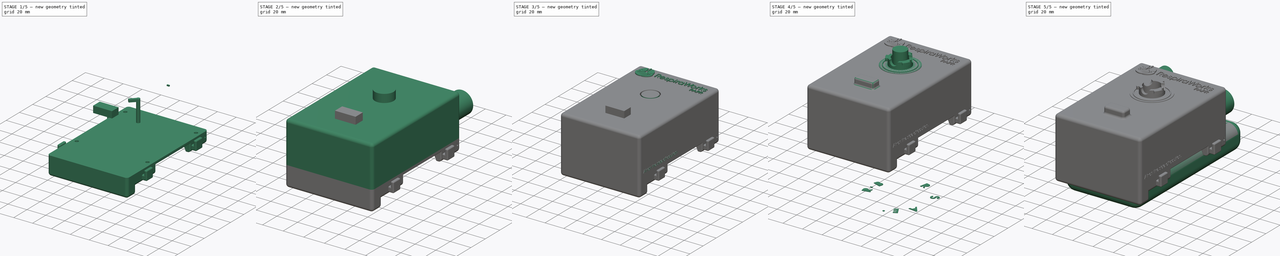
[diagram: build sequence overview — one tinted view per stage of 5, left to right]
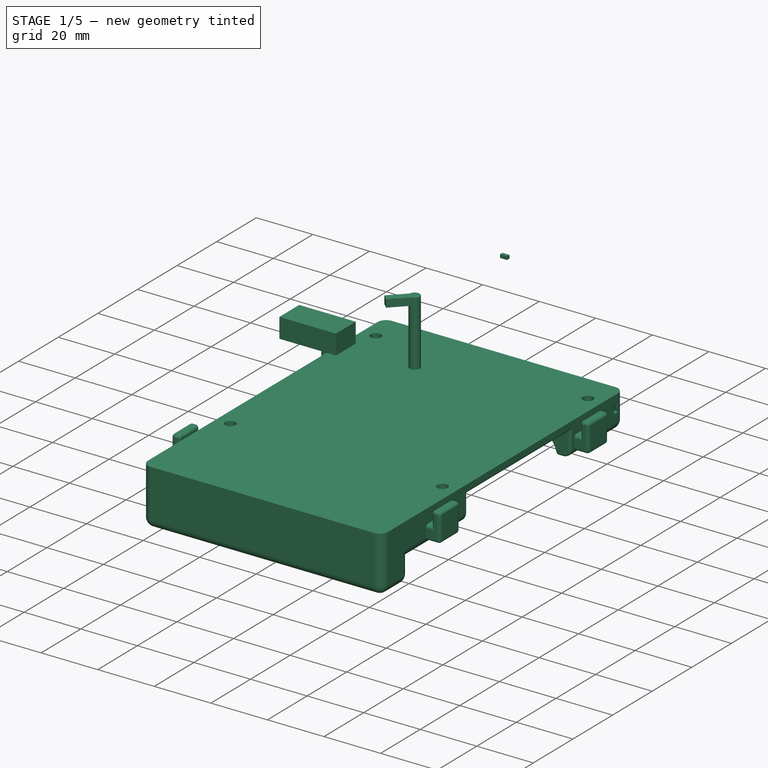
[diagram: stage 1 of 5 — iso view after this stage's code; geometry added in this stage tinted green]
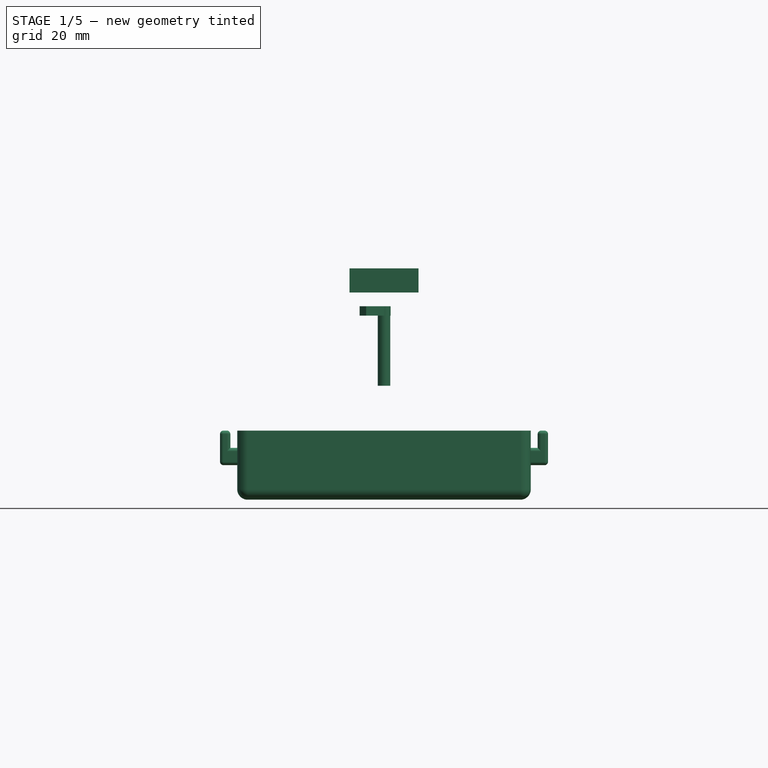
[diagram: stage 1 of 5 — front view after this stage's code; geometry added in this stage tinted green]
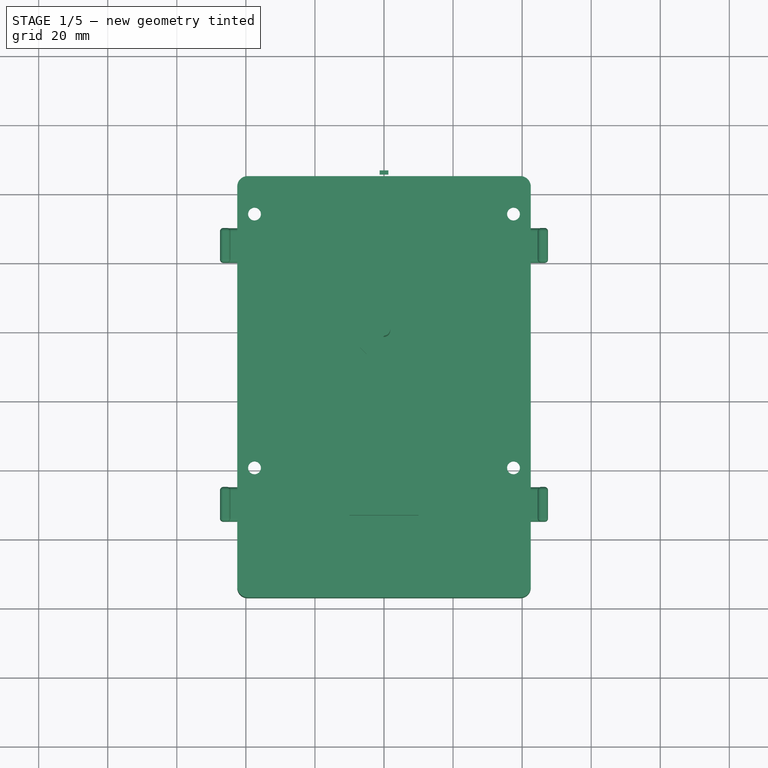
[diagram: stage 1 of 5 — top view after this stage's code; geometry added in this stage tinted green]
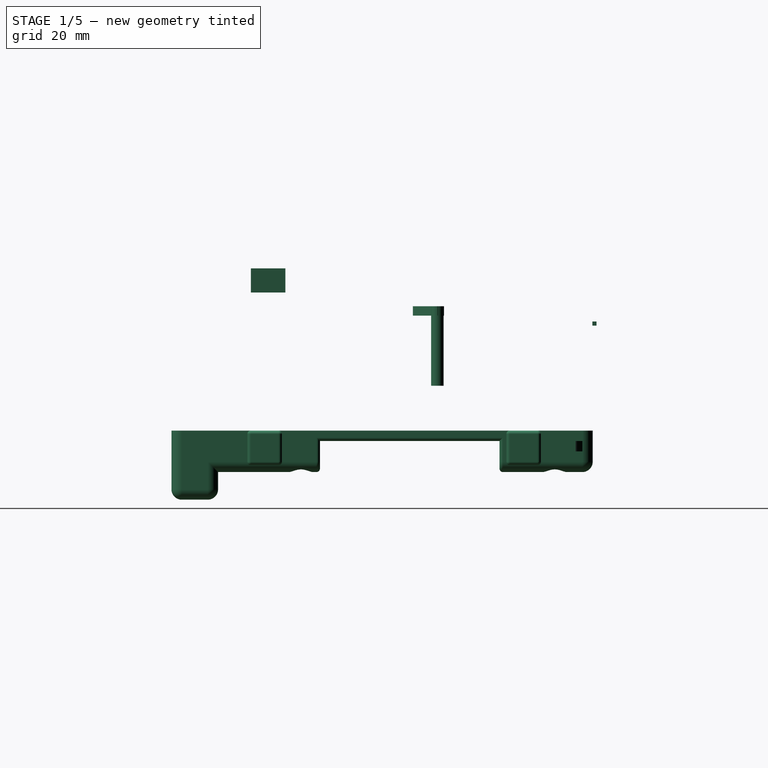
[diagram: stage 1 of 5 — right view after this stage's code; geometry added in this stage tinted green]
FCSTD DOCUMENT  (FreeCAD 0.18R4 (GitTag))
Label: PAPRv10-MAIN
License: All rights reserved
LicenseURL: http://en.wikipedia.org/wiki/All_rights_reserved
objects: Part::Extrusion×73, Part::Feature×64, Part::Cylinder×47, Part::MultiFuse×33, Part::Box×26, Part::Fillet×26, Part::Cut×20, Sketcher::SketchObject×10, Part::Helix×8, Part::Part2DObjectPython×7, Part::Mirroring×5, Part::Revolution×4, Part::FeaturePython×4, Part::Sweep×4, Part::Cone×3, Part::Chamfer×1
note: 335 computed .brp shape members not serialized (recipe doc carries the construction recipe); baked Part::Feature solids carry a one-line shape summary decoded from their .brp

FEATURE [Part::Box] Box028  label="pBatteryBlock"
  AttacherType = Attacher::AttachEngine3D
  Height = 20
  Length = 85
  Placement = pos=(-42.5,-77,-20) rot=(0,0,1;0rad)
  Width = 122
FEATURE [Part::Box] Box029  label="Cube004"
  AttacherType = Attacher::AttachEngine3D
  Height = 30.5
  Length = 75
  Placement = pos=(-37.5,-73,-34.5) rot=(0,0,1;0rad)
  Width = 150
FEATURE [Part::Cylinder] Cylinder064  label="BatteryBackScrewHole"
  Angle = 360
  AttacherType = Attacher::AttachEngine3D
  Height = 12
  Placement = pos=(0,0,0) rot=(0,1,0;3.14159rad)
  Radius = 1.85
FEATURE [Part::Cylinder] Cylinder069  label="BatteryBackScrewCountersink"
  Angle = 360
  AttacherType = Attacher::AttachEngine3D
  Height = 12
  Placement = pos=(0,0,-1.5) rot=(0,1,0;3.14159rad)
  Radius = 4
FEATURE [Part::Fillet] Fillet019  label="nBatteryBack-BatteryPocket001"
  Base = -> Box029
  Edges = 12 edges r=9.5: [Edge1,Edge2,Edge3,Edge4,Edge5,Edge6,Edge7,Edge8,Edge9,Edge10,Edge11,Edge12]
FEATURE [Sketcher::SketchObject] Sketch011  label="AttachPocketProfile002"
  sketch-geometry (4):
    g0: ArcOfCircle CenterX=0 CenterY=0 CenterZ=0 NormalX=0 NormalY=0 NormalZ=1 AngleXU=0 Radius=3 StartAngle=3.14159 EndAngle=4.71239
    g1: ArcOfCircle CenterX=0 CenterY=0 CenterZ=0 NormalX=0 NormalY=0 NormalZ=1 AngleXU=0 Radius=5 StartAngle=3.14159 EndAngle=4.71239
    g2: LineSegment StartX=-5 StartY=6e-16 StartZ=0 EndX=-3 EndY=4e-16 EndZ=0
    g3: LineSegment StartX=-6e-16 StartY=-3 StartZ=0 EndX=-9e-16 EndY=-5 EndZ=0
  constraints (12):
    c: PointOnObject(g0,g-1)
    c: PointOnObject(g0,g-2)
    c: Coincident(g0,g-1)
    c: Radius(g0) = 3
    c: Coincident(g1,g0)
    c: PointOnObject(g1,g-1)
    c: PointOnObject(g1,g-2)
    c: Radius(g1) = 5
    c: Coincident(g2,g0)
    c: Coincident(g3,g0)
    c: Coincident(g3,g1)
    c: Coincident(g2,g1)
FEATURE [Part::Extrusion] Extrude044  label="BatteryBackAttachPocket001"
  Base = -> Sketch011
  Dir = (0,0,1)
  DirMode = 2
  FaceMakerClass = Part::FaceMakerBullseye
  LengthFwd = 3
  LengthRev = 0
  Placement = pos=(42.5,45,-6) rot=(0,0,1;0rad)
  Solid = true
  Symmetric = false
FEATURE [Part::Mirroring] Part__Mirroring008  label="nBatteryBack-AttachPocketLeft001"
  Base = (0,0,0)
  Normal = (1,0,0)
  Source = -> Extrude044
FEATURE [Sketcher::SketchObject] Sketch013  label="AttachPocketProfile003"
  sketch-geometry (4):
    g0: ArcOfCircle CenterX=0 CenterY=0 CenterZ=0 NormalX=0 NormalY=0 NormalZ=1 AngleXU=0 Radius=3 StartAngle=3.14159 EndAngle=4.71239
    g1: ArcOfCircle CenterX=0 CenterY=0 CenterZ=0 NormalX=0 NormalY=0 NormalZ=1 AngleXU=0 Radius=5 StartAngle=3.14159 EndAngle=4.71239
    g2: LineSegment StartX=-5 StartY=6e-16 StartZ=0 EndX=-3 EndY=4e-16 EndZ=0
    g3: LineSegment StartX=-6e-16 StartY=-3 StartZ=0 EndX=-9e-16 EndY=-5 EndZ=0
  constraints (12):
    c: PointOnObject(g0,g-1)
    c: PointOnObject(g0,g-2)
    c: Coincident(g0,g-1)
    c: Radius(g0) = 3
    c: Coincident(g1,g0)
    c: PointOnObject(g1,g-1)
    c: PointOnObject(g1,g-2)
    c: Radius(g1) = 5
    c: Coincident(g2,g0)
    c: Coincident(g3,g0)
    c: Coincident(g3,g1)
    c: Coincident(g2,g1)
FEATURE [Part::Extrusion] Extrude045  label="nBatteryBack-AttachPocketRight001"
  Base = -> Sketch013
  Dir = (0,0,1)
  DirMode = 2
  FaceMakerClass = Part::FaceMakerBullseye
  LengthFwd = 3
  LengthRev = 0
  Placement = pos=(42.5,45,-6) rot=(0,0,1;0rad)
  Solid = true
  Symmetric = false
FEATURE [Part::Part2DObjectPython] ShapeString008  label="ShapeString-Love001"  # Draft 2D object (typed FeaturePython)
  FontFile = <path>
  Size = 2
  String = DESIGNED WITH LOVE
  Tracking = 0
FEATURE [Part::Extrusion] Extrude046  label="nBatteryBack-TextLove001"
  Base = -> ShapeString008
  Dir = (0,0,1)
  DirMode = 2
  FaceMakerClass = Part::FaceMakerBullseye
  LengthFwd = 0.5
  LengthRev = 0
  Placement = pos=(22,-57.5,-3.5) rot=(0,1,0;3.14159rad)
  Solid = false
  Symmetric = false
FEATURE [Part::Box] Box030  label="pRubberBandAnchorBase"
  AttacherType = Attacher::AttachEngine3D
  Height = 7
  Length = 10
  Placement = pos=(0,0,-2) rot=(0,0,1;0rad)
  Width = 10
FEATURE [Part::Box] Box031  label="nRubberBandAnchorBase"
  AttacherType = Attacher::AttachEngine3D
  Height = 4
  Length = 5
  Placement = pos=(0,0,-2) rot=(0,0,1;0rad)
  Width = 20
FEATURE [Part::Cut] Cut026  label="RubberBandAnchorBase"
  Base = -> Box030
  Tool = -> Box031
FEATURE [Part::Fillet] Fillet021  label="pRubberBandAnchor-LowerRight"
  Base = -> Cut026
  Edges = 13 edges r=1: [Edge1,Edge2,Edge3,Edge4,Edge6,Edge7,Edge8,Edge9,Edge10,Edge11,Edge13,Edge14,Edge15]
  Placement = pos=(-42.5,-45,-1e-15) rot=(0.707107,0,-0.707107;3.14159rad)
FEATURE [Part::Box] Box032  label="pRubberBandAnchorBase001"
  AttacherType = Attacher::AttachEngine3D
  Height = 7
  Length = 10
  Placement = pos=(0,0,-2) rot=(0,0,1;0rad)
  Width = 10
FEATURE [Part::Box] Box033  label="nRubberBandAnchorBase001"
  AttacherType = Attacher::AttachEngine3D
  Height = 4
  Length = 5
  Placement = pos=(0,0,-2) rot=(0,0,1;0rad)
  Width = 20
FEATURE [Part::Cut] Cut027  label="RubberBandAnchorBase001"
  Base = -> Box032
  Tool = -> Box033
FEATURE [Part::Fillet] Fillet022  label="pRubberBandAnchor-LowerLeft"
  Base = -> Cut027
  Edges = 13 edges r=1: [Edge1,Edge2,Edge3,Edge4,Edge6,Edge7,Edge8,Edge9,Edge10,Edge11,Edge13,Edge14,Edge15]
  Placement = pos=(42.5,-55,0) rot=(0,1,0;1.5708rad)
FEATURE [Part::Box] Box034  label="nRubberBandAnchorBase002"
  AttacherType = Attacher::AttachEngine3D
  Height = 4
  Length = 5
  Placement = pos=(0,0,-2) rot=(0,0,1;0rad)
  Width = 20
FEATURE [Part::Box] Box035  label="pRubberBandAnchorBase002"
  AttacherType = Attacher::AttachEngine3D
  Height = 7
  Length = 10
  Placement = pos=(0,0,-2) rot=(0,0,1;0rad)
  Width = 10
FEATURE [Part::Cut] Cut028  label="RubberBandAnchorBase002"
  Base = -> Box035
  Tool = -> Box034
FEATURE [Part::Fillet] Fillet023  label="pRubberBandAnchor-UpperLeft"
  Base = -> Cut028
  Edges = 13 edges r=1: [Edge1,Edge2,Edge3,Edge4,Edge6,Edge7,Edge8,Edge9,Edge10,Edge11,Edge13,Edge14,Edge15]
  Placement = pos=(42.5,20,0) rot=(0,1,0;1.5708rad)
FEATURE [Part::Box] Box036  label="pRubberBandAnchorBase003"
  AttacherType = Attacher::AttachEngine3D
  Height = 7
  Length = 10
  Placement = pos=(0,0,-2) rot=(0,0,1;0rad)
  Width = 10
FEATURE [Part::Box] Box037  label="nRubberBandAnchorBase003"
  AttacherType = Attacher::AttachEngine3D
  Height = 4
  Length = 5
  Placement = pos=(0,0,-2) rot=(0,0,1;0rad)
  Width = 20
FEATURE [Part::Cut] Cut029  label="RubberBandAnchorBase003"
  Base = -> Box036
  Tool = -> Box037
FEATURE [Part::Fillet] Fillet024  label="pRubberBandAnchor-UpperRight"
  Base = -> Cut029
  Edges = 13 edges r=1: [Edge1,Edge2,Edge3,Edge4,Edge6,Edge7,Edge8,Edge9,Edge10,Edge11,Edge13,Edge14,Edge15]
  Placement = pos=(-42.5,30,-1e-15) rot=(0.707107,0,-0.707107;3.14159rad)
FEATURE [Part::Box] Box039  label="nBatteryBlock"
  AttacherType = Attacher::AttachEngine3D
  Height = 8
  Length = 85
  Placement = pos=(-42.5,-63.5,-20) rot=(0,0,1;0rad)
  Width = 108.5
FEATURE [Part::Cut] Cut034  label="BatteryBlock"
  Base = -> Box028
  Tool = -> Box039
FEATURE [Part::Fillet] Fillet027  label="pBatteryBlockSmooth"
  Base = -> Cut034
  Edges = 13 edges r=3: [Edge2,Edge3,Edge4,Edge5,Edge6,Edge10,Edge11,Edge12,Edge14,Edge15,Edge16,Edge17,Edge18]
FEATURE [Part::Box] Box040  label="nBatteryBack-WaistStrapCutout"
  AttacherType = Attacher::AttachEngine3D
  Height = 12
  Length = 85
  Placement = pos=(-42.5,-34,-15) rot=(0,0,1;0rad)
  Width = 52
FEATURE [Part::Helix] Helix006
  Angle = 0
  AttacherType = Attacher::AttachEngine3D
  Height = 30
  LocalCoord = 0
  Pitch = 0.79
  Radius = 1.7526
  Style = 1
FEATURE [Part::Helix] Helix007
  Angle = 0
  AttacherType = Attacher::AttachEngine3D
  Height = 30
  LocalCoord = 0
  Pitch = 0.79
  Radius = 1.7526
  Style = 1
FEATURE [Part::MultiFuse] Fusion085  label="nBatteryBackScrewHole1"
  Placement = pos=(37.5,34,0) rot=(0,0,1;0rad)
  Shapes = -> [Cylinder064,Cylinder069]
FEATURE [Part::Cylinder] Cylinder080  label="BatteryBackScrewCountersink001"
  Angle = 360
  AttacherType = Attacher::AttachEngine3D
  Height = 12
  Placement = pos=(0,0,-1.5) rot=(0,1,0;3.14159rad)
  Radius = 4
FEATURE [Part::Cylinder] Cylinder081  label="BatteryBackScrewHole001"
  Angle = 360
  AttacherType = Attacher::AttachEngine3D
  Height = 12
  Placement = pos=(0,0,0) rot=(0,1,0;3.14159rad)
  Radius = 1.85
FEATURE [Part::MultiFuse] Fusion086  label="nBatteryBackScrewHole2"
  Placement = pos=(-37.5,34,0) rot=(0,0,1;0rad)
  Shapes = -> [Cylinder081,Cylinder080]
FEATURE [Part::Cylinder] Cylinder082  label="BatteryBackScrewCountersink002"
  Angle = 360
  AttacherType = Attacher::AttachEngine3D
  Height = 12
  Placement = pos=(0,0,-1.5) rot=(0,1,0;3.14159rad)
  Radius = 4
FEATURE [Part::Cylinder] Cylinder083  label="BatteryBackScrewHole002"
  Angle = 360
  AttacherType = Attacher::AttachEngine3D
  Height = 12
  Placement = pos=(0,0,0) rot=(0,1,0;3.14159rad)
  Radius = 1.85
FEATURE [Part::MultiFuse] Fusion087  label="nBatteryBackScrewHole3"
  Placement = pos=(37.5,-39.5,0) rot=(0,0,1;0rad)
  Shapes = -> [Cylinder083,Cylinder082]
FEATURE [Part::Cylinder] Cylinder084  label="BatteryBackScrewCountersink003"
  Angle = 360
  AttacherType = Attacher::AttachEngine3D
  Height = 12
  Placement = pos=(0,0,-1.5) rot=(0,1,0;3.14159rad)
  Radius = 4
FEATURE [Part::Cylinder] Cylinder085  label="BatteryBackScrewHole003"
  Angle = 360
  AttacherType = Attacher::AttachEngine3D
  Height = 12
  Placement = pos=(0,0,0) rot=(0,1,0;3.14159rad)
  Radius = 1.85
FEATURE [Part::MultiFuse] Fusion088  label="nBatteryBackScrewHole4"
  Placement = pos=(-37.5,-39.5,0) rot=(0,0,1;0rad)
  Shapes = -> [Cylinder085,Cylinder084]
FEATURE [Part::MultiFuse] Fusion094  label="nBatteryBack"
  Shapes = -> [Fusion088,Fillet019,Extrude045,Extrude046,Part__Mirroring008,Box040,Fusion087,Fusion086,Fusion085]
FEATURE [Part::MultiFuse] Fusion095  label="pBatteryBack"
  Shapes = -> [Fillet027,Fillet021,Fillet022,Fillet023,Fillet024]
FEATURE [Part::Cut] Cut041  label="BatteryBackMinusFillet"
  Base = -> Fusion095
  Tool = -> Fusion094
FEATURE [Part::Box] Box041  label="nBody-PotNotch"
  AttacherType = Attacher::AttachEngine3D
  Height = 1.2
  Length = 2.5
  Placement = pos=(-1.25,44.9,30.4) rot=(0,0,1;0rad)
  Width = 1.2
FEATURE [Part::Cylinder] Cylinder093  label="nBody-ScrewHoleClearance"
  Angle = 360
  AttacherType = Attacher::AttachEngine3D
  Height = 23
  Placement = pos=(0,0,13) rot=(0,0,1;0rad)
  Radius = 1.8
FEATURE [Part::Cylinder] Cylinder094  label="nBody-ScrewHoleClearance001"
  Angle = 360
  AttacherType = Attacher::AttachEngine3D
  Height = 23
  Placement = pos=(0,0,13) rot=(0,0,1;0rad)
  Radius = 1.8
FEATURE [Part::Cylinder] Cylinder095  label="nBody-ScrewHoleClearance002"
  Angle = 360
  AttacherType = Attacher::AttachEngine3D
  Height = 23
  Placement = pos=(0,0,13) rot=(0,0,1;0rad)
  Radius = 1.8
FEATURE [Part::Box] Box042  label="Cube"
  AttacherType = Attacher::AttachEngine3D
  Height = 2.7
  Length = 2.7
  Placement = pos=(1.91,0,33.3) rot=(0,0,1;2.35619rad)
  Width = 10
FEATURE [Part::Fillet] Fillet037  label="TopLevelPart-BatteryBack"
  Base = -> Cut041
  Edges = 17 edges: [Edge14 r=1,Edge15 r=1,Edge16 r=1,Edge76 r=0.7,Edge80 r=1,Edge82 r=1,Edge87 r=0.7,Edge91 r=1,Edge176 r=1,Edge182 r=1,Edge203 r=1,Edge206 r=1,Edge216 r=1,Edge219 r=1,Edge372 r=1,Edge375 r=1,Edge419 r=0.7]
FEATURE [Part::Box] Box043  label="pBody-FilterBumper"
  AttacherType = Attacher::AttachEngine3D
  Height = 7
  Length = 20
  Placement = pos=(-10,-54,40) rot=(0,0,1;0rad)
  Width = 10
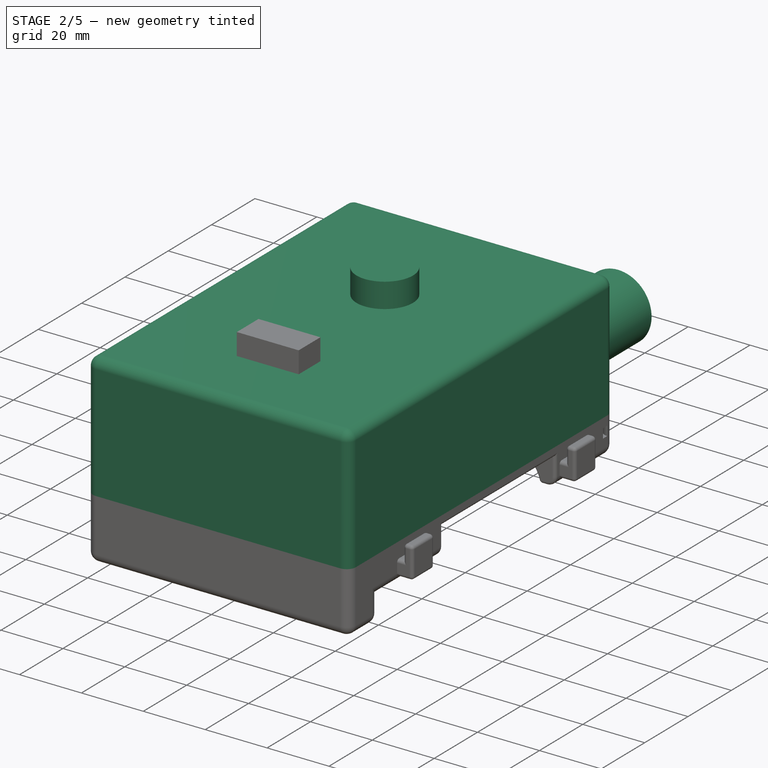
[diagram: stage 2 of 5 — iso view after this stage's code; geometry added in this stage tinted green]
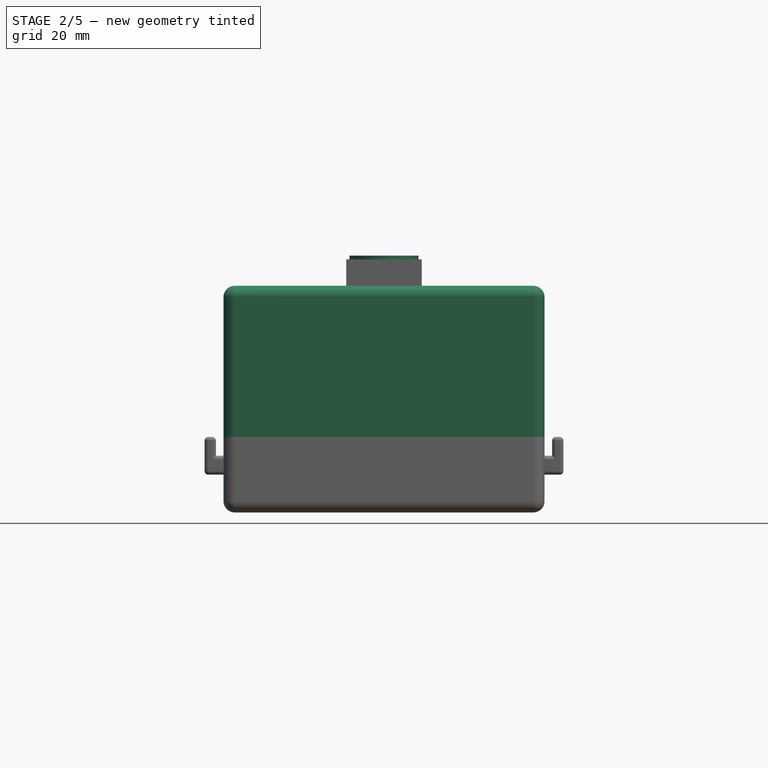
[diagram: stage 2 of 5 — front view after this stage's code; geometry added in this stage tinted green]
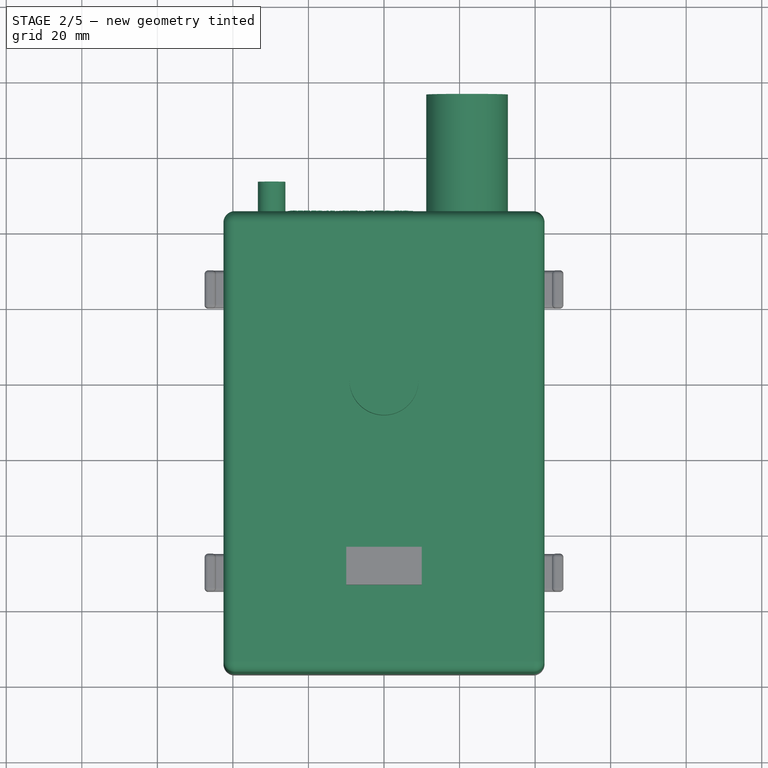
[diagram: stage 2 of 5 — top view after this stage's code; geometry added in this stage tinted green]
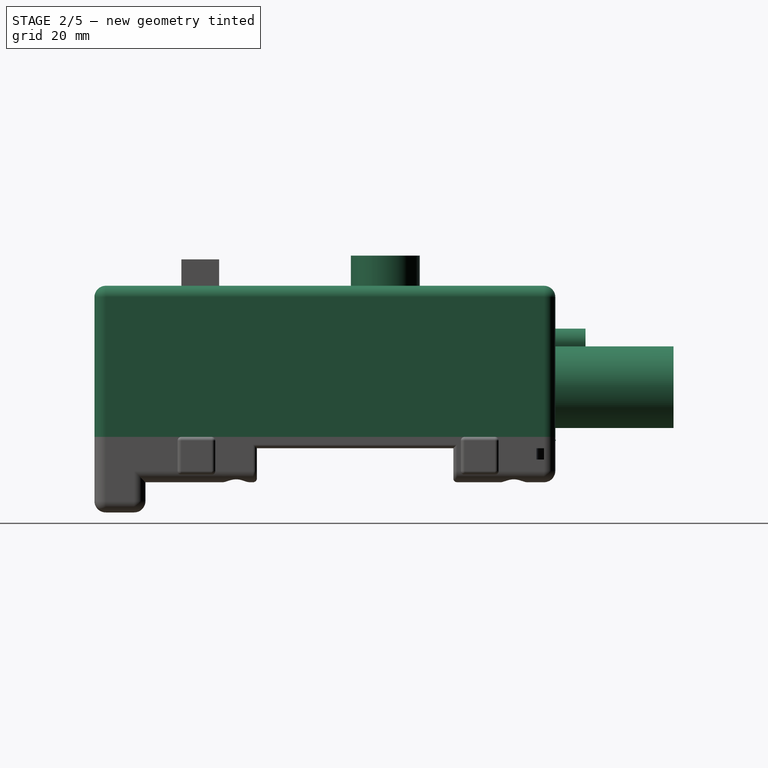
[diagram: stage 2 of 5 — right view after this stage's code; geometry added in this stage tinted green]
FEATURE [Part::Box] Box011  label="BodyBlock"
  AttacherType = Attacher::AttachEngine3D
  Height = 40
  Length = 85
  Placement = pos=(-42.5,-77,0) rot=(0,0,1;0rad)
  Width = 122
FEATURE [Part::Cylinder] Cylinder024  label="nBody-ScrewHole1"
  Angle = 360
  AttacherType = Attacher::AttachEngine3D
  Height = 36
  Radius = 1.35
FEATURE [Part::Cylinder] Cylinder032  label="nBody-BlowerBody"
  Angle = 360
  AttacherType = Attacher::AttachEngine3D
  Height = 18
  Placement = pos=(0,0,20) rot=(0,0,1;0rad)
  Radius = 29.75
FEATURE [Part::Cylinder] Cylinder034  label="nBody-Downpipe"
  Angle = 360
  AttacherType = Attacher::AttachEngine3D
  Height = 10
  Placement = pos=(0,0,38) rot=(0,0,1;0rad)
  Radius = 9.12
FEATURE [Part::Cone] Cone003  label="BlowerInlet002"
  Angle = 360
  AttacherType = Attacher::AttachEngine3D
  Height = 13
  Placement = pos=(0,0,22.5) rot=(0,0,1;0rad)
  Radius1 = 27.25
  Radius2 = 27.15
FEATURE [Part::Cylinder] Cylinder039  label="BlowerBody001"
  Angle = 360
  AttacherType = Attacher::AttachEngine3D
  Height = 18
  Placement = pos=(0,0,4.5) rot=(0,0,1;0rad)
  Radius = 35
FEATURE [Part::Cylinder] Cylinder040  label="BlowerEndbearing001"
  Angle = 360
  AttacherType = Attacher::AttachEngine3D
  Height = 5
  Placement = pos=(0,0,1) rot=(0,0,1;0rad)
  Radius = 2.25
FEATURE [Part::Cylinder] Cylinder041
  Angle = 360
  AttacherType = Attacher::AttachEngine3D
  Height = 10
  Placement = pos=(0,-28.4,0) rot=(0,0,1;0rad)
  Radius = 2
FEATURE [Part::FeaturePython] Array004  label="BlowerFeet001"  # Draft array (typed FeaturePython)
  Angle = 360
  ArrayType = 1
  Axis = (0,0,1)
  Base = -> Cylinder041
  Center = (0,0,0)
  Fuse = false
  IntervalAxis = (0,0,0)
  IntervalX = (1,0,0)
  IntervalY = (0,1,0)
  IntervalZ = (0,0,1)
  NumberPolar = 3
  NumberX = 1
  NumberY = 1
  NumberZ = 1
FEATURE [Part::Cylinder] Cylinder042  label="BlowerOutlet001"
  Angle = 360
  AttacherType = Attacher::AttachEngine3D
  Height = 80
  Placement = pos=(22,76.3,13.15) rot=(1,0,0;1.5708rad)
  Radius = 10.8
FEATURE [Part::Cylinder] Cylinder043  label="BlowerBodyEnvelope001"
  Angle = 360
  AttacherType = Attacher::AttachEngine3D
  Height = 36
  Radius = 38.5
FEATURE [Part::Box] Box012  label="ElectricalPocket"
  AttacherType = Attacher::AttachEngine3D
  Height = 36
  Length = 77
  Placement = pos=(-38.5,-73,0) rot=(0,0,1;0rad)
  Width = 73
FEATURE [Part::Box] Box013  label="PotBody"
  AttacherType = Attacher::AttachEngine3D
  Height = 36
  Length = 15
  Placement = pos=(-8.75,0,0) rot=(0,0,1;0rad)
  Width = 45
FEATURE [Part::Cylinder] Cylinder044  label="PotShaft"
  Angle = 360
  AttacherType = Attacher::AttachEngine3D
  Height = 10
  Placement = pos=(0,55,25) rot=(1,0,0;1.5708rad)
  Radius = 3.65
FEATURE [Part::Box] Box016  label="nBody-PowerWireBlock"
  AttacherType = Attacher::AttachEngine3D
  Height = 4.5
  Length = 4.5
  Placement = pos=(-14,0,0) rot=(0,0,1;0rad)
  Width = 20
FEATURE [Part::Box] Box017  label="BlowerOutletPocketBlock"
  AttacherType = Attacher::AttachEngine3D
  Height = 36
  Length = 23.5
  Placement = pos=(15,0,0) rot=(0,0,1;0rad)
  Width = 35
FEATURE [Part::Helix] Helix
  Angle = 0
  AttacherType = Attacher::AttachEngine3D
  Height = 30
  LocalCoord = 0
  Pitch = 0.79
  Radius = 1.7526
  Style = 1
FEATURE [Sketcher::SketchObject] Sketch004
  Placement = pos=(0,0,0) rot=(1,0,0;1.5708rad)
  sketch-geometry (4):
    g0: LineSegment StartX=1.08576 StartY=-0.385 StartZ=0 EndX=1.7526 EndY=0 EndZ=0
    g1: LineSegment StartX=1.7526 StartY=0 StartZ=0 EndX=1.08576 EndY=0.385 EndZ=0
    g2: LineSegment StartX=1.08576 StartY=0.385 StartZ=0 EndX=1.08576 EndY=-0.385 EndZ=0
    g3: Circle [constr] CenterX=1.30804 CenterY=7.64e-14 CenterZ=0 NormalX=0 NormalY=0 NormalZ=1 AngleXU=0 Radius=0.44456
  constraints (12):
    c: Coincident(g0,g1)
    c: Coincident(g1,g2)
    c: Coincident(g2,g0)
    c: Equal(g0,g1)
    c: Equal(g0,g2)
    c: PointOnObject(g0,g3)
    c: PointOnObject(g1,g3)
    c: PointOnObject(g2,g3)
    c: Parallel(g2,g-2)
    c: PointOnObject(g0,g-1)
    c: DistanceX(g-1,g0) = 1.7526
    c: DistanceY(g0,g1) = 0.77
FEATURE [Part::Cylinder] Cylinder049  label="Cylinder042"
  Angle = 360
  AttacherType = Attacher::AttachEngine3D
  Height = 30
  Radius = 1.07
FEATURE [Part::Sweep] Sweep  label="6-32Thread"
  Frenet = true
  Sections = -> [Sketch004]
  Solid = true
  Spine = -> Helix [Edge38,Edge37,Edge36,Edge35,Edge34,Edge33,Edge32,Edge31,Edge30,Edge29,Edge28,Edge27,Edge26,Edge25,Edge24,Edge23,Edge22,Edge21,Edge20,Edge19,Edge18,Edge17,Edge16,Edge15,Edge14,Edge13,Edge12,Edge11,Edge10,Edge9,Edge8,Edge7,Edge6,Edge5,Edge4,Edge3,Edge2,Edge1]
  Transition = 1
FEATURE [Part::Box] Box  label="nBody-OutletLockSlot"
  AttacherType = Attacher::AttachEngine3D
  Height = 26
  Length = 27
  Placement = pos=(8.5,38.75,0) rot=(0,0,1;0rad)
  Width = 2.8
FEATURE [Part::Feature] Face020
  shape: bbox 13.56 x 15.09 x 2e-07 mm, 1 faces, 0 solids (baked)
FEATURE [Part::Extrusion] Extrude020  label="p-m-RightHand"
  Base = -> Face020
  Dir = (0,0,-1)
  DirMode = 2
  FaceMakerClass = Part::FaceMakerBullseye
  LengthFwd = 1
  LengthRev = 0
  Solid = false
  Symmetric = false
FEATURE [Part::Part2DObjectPython] ShapeString004  label="Text-Unplug1"  # Draft 2D object (typed FeaturePython)
  FontFile = <path>
  Size = 2
  String = ALWAYS UNPLUG
  Tracking = 0
FEATURE [Part::Part2DObjectPython] ShapeString005  label="Text-Unplug2"  # Draft 2D object (typed FeaturePython)
  FontFile = <path>
  Size = 2
  String = WHEN NOT IN USE
  Tracking = 0
FEATURE [Part::Extrusion] Extrude038  label="pBody-TextUnplug1"
  Base = -> ShapeString004
  Dir = (0,0,1)
  DirMode = 2
  FaceMakerClass = Part::FaceMakerBullseye
  LengthFwd = 0.5
  LengthRev = 0
  Placement = pos=(-25,45,9) rot=(-1,0,0;1.5708rad)
  Solid = false
  Symmetric = false
FEATURE [Part::Extrusion] Extrude039  label="pBody-TextUnplug2"
  Base = -> ShapeString005
  Dir = (0,0,1)
  DirMode = 2
  FaceMakerClass = Part::FaceMakerBullseye
  LengthFwd = 0.5
  LengthRev = 0
  Placement = pos=(-25.5,45,14) rot=(-1,0,0;1.5708rad)
  Solid = false
  Symmetric = false
FEATURE [Part::Part2DObjectPython] ShapeString006  label="BodyText-Reset"  # Draft 2D object (typed FeaturePython)
  FontFile = <path>
  Size = 1.7
  String = RESET IF 'PD' NOT LIT
  Tracking = 0
FEATURE [Part::Extrusion] Extrude040  label="pBody-TextReset"
  Base = -> ShapeString006
  Dir = (0,0,1)
  DirMode = 2
  FaceMakerClass = Part::FaceMakerBullseye
  LengthFwd = 0.5
  LengthRev = 0
  Placement = pos=(-25,45,18.5) rot=(-1,0,0;1.5708rad)
  Solid = false
  Symmetric = false
FEATURE [Part::Fillet] Fillet003  label="pBody-Block"
  Base = -> Box011
  Edges = 8 edges r=3: [Edge1,Edge2,Edge3,Edge5,Edge6,Edge7,Edge10,Edge12]
FEATURE [Part::Box] Box038  label="nBody-OutletKeyRemoval"
  AttacherType = Attacher::AttachEngine3D
  Height = 2
  Length = 4
  Placement = pos=(20,39.8481,-0.0669911) rot=(-1,0,0;0.523599rad)
  Width = 5
FEATURE [Part::Fillet] Fillet028  label="nBody-PowerWire"
  Base = -> Box016
  Edges = 2 edges r=2.2: [Edge2,Edge6]
  Placement = pos=(-18,25,0) rot=(0,0,1;0rad)
FEATURE [Part::Fillet] Fillet029  label="BlowerOutletPocket"
  Base = -> Box017
  Edges = 1 edges r=15: [Edge7]
FEATURE [Part::MultiFuse] Fusion076  label="nBody-Blower"
  Shapes = -> [Fillet029,Cylinder039,Cylinder040,Cylinder042,Cylinder043,Array004,Cone003]
FEATURE [Part::Cylinder] Cylinder070  label="nBody-ScrewHole002"
  Angle = 360
  AttacherType = Attacher::AttachEngine3D
  Height = 36
  Radius = 1.35
FEATURE [Part::Cylinder] Cylinder071  label="Cylinder043"
  Angle = 360
  AttacherType = Attacher::AttachEngine3D
  Height = 30
  Radius = 1.07
FEATURE [Part::Helix] Helix003
  Angle = 0
  AttacherType = Attacher::AttachEngine3D
  Height = 30
  LocalCoord = 0
  Pitch = 0.79
  Radius = 1.7526
  Style = 1
FEATURE [Sketcher::SketchObject] Sketch014
  Placement = pos=(0,0,0) rot=(1,0,0;1.5708rad)
  sketch-geometry (4):
    g0: LineSegment StartX=1.08576 StartY=-0.385 StartZ=0 EndX=1.7526 EndY=0 EndZ=0
    g1: LineSegment StartX=1.7526 StartY=0 StartZ=0 EndX=1.08576 EndY=0.385 EndZ=0
    g2: LineSegment StartX=1.08576 StartY=0.385 StartZ=0 EndX=1.08576 EndY=-0.385 EndZ=0
    g3: Circle [constr] CenterX=1.30804 CenterY=7.64e-14 CenterZ=0 NormalX=0 NormalY=0 NormalZ=1 AngleXU=0 Radius=0.44456
  constraints (12):
    c: Coincident(g0,g1)
    c: Coincident(g1,g2)
    c: Coincident(g2,g0)
    c: Equal(g0,g1)
    c: Equal(g0,g2)
    c: PointOnObject(g0,g3)
    c: PointOnObject(g1,g3)
    c: PointOnObject(g2,g3)
    c: Parallel(g2,g-2)
    c: PointOnObject(g0,g-1)
    c: DistanceX(g-1,g0) = 1.7526
    c: DistanceY(g0,g1) = 0.77
FEATURE [Part::Sweep] Sweep001  label="6-32Thread001"
  Frenet = true
  Sections = -> [Sketch014]
  Solid = true
  Spine = -> Helix003 [Edge38,Edge37,Edge36,Edge35,Edge34,Edge33,Edge32,Edge31,Edge30,Edge29,Edge28,Edge27,Edge26,Edge25,Edge24,Edge23,Edge22,Edge21,Edge20,Edge19,Edge18,Edge17,Edge16,Edge15,Edge14,Edge13,Edge12,Edge11,Edge10,Edge9,Edge8,Edge7,Edge6,Edge5,Edge4,Edge3,Edge2,Edge1]
  Transition = 1
FEATURE [Part::Cylinder] Cylinder072  label="nBody-ScrewHole003"
  Angle = 360
  AttacherType = Attacher::AttachEngine3D
  Height = 36
  Radius = 1.35
FEATURE [Part::Cylinder] Cylinder073  label="Cylinder044"
  Angle = 360
  AttacherType = Attacher::AttachEngine3D
  Height = 30
  Radius = 1.07
FEATURE [Part::Helix] Helix004
  Angle = 0
  AttacherType = Attacher::AttachEngine3D
  Height = 30
  LocalCoord = 0
  Pitch = 0.79
  Radius = 1.7526
  Style = 1
FEATURE [Sketcher::SketchObject] Sketch015
  Placement = pos=(0,0,0) rot=(1,0,0;1.5708rad)
  sketch-geometry (4):
    g0: LineSegment StartX=1.08576 StartY=-0.385 StartZ=0 EndX=1.7526 EndY=0 EndZ=0
    g1: LineSegment StartX=1.7526 StartY=0 StartZ=0 EndX=1.08576 EndY=0.385 EndZ=0
    g2: LineSegment StartX=1.08576 StartY=0.385 StartZ=0 EndX=1.08576 EndY=-0.385 EndZ=0
    g3: Circle [constr] CenterX=1.30804 CenterY=7.64e-14 CenterZ=0 NormalX=0 NormalY=0 NormalZ=1 AngleXU=0 Radius=0.44456
  constraints (12):
    c: Coincident(g0,g1)
    c: Coincident(g1,g2)
    c: Coincident(g2,g0)
    c: Equal(g0,g1)
    c: Equal(g0,g2)
    c: PointOnObject(g0,g3)
    c: PointOnObject(g1,g3)
    c: PointOnObject(g2,g3)
    c: Parallel(g2,g-2)
    c: PointOnObject(g0,g-1)
    c: DistanceX(g-1,g0) = 1.7526
    c: DistanceY(g0,g1) = 0.77
FEATURE [Part::Sweep] Sweep002  label="6-32Thread002"
  Frenet = true
  Sections = -> [Sketch015]
  Solid = true
  Spine = -> Helix004 [Edge38,Edge37,Edge36,Edge35,Edge34,Edge33,Edge32,Edge31,Edge30,Edge29,Edge28,Edge27,Edge26,Edge25,Edge24,Edge23,Edge22,Edge21,Edge20,Edge19,Edge18,Edge17,Edge16,Edge15,Edge14,Edge13,Edge12,Edge11,Edge10,Edge9,Edge8,Edge7,Edge6,Edge5,Edge4,Edge3,Edge2,Edge1]
  Transition = 1
FEATURE [Part::Cylinder] Cylinder074  label="nBody-ScrewHole004"
  Angle = 360
  AttacherType = Attacher::AttachEngine3D
  Height = 36
  Radius = 1.35
FEATURE [Part::Cylinder] Cylinder075  label="Cylinder045"
  Angle = 360
  AttacherType = Attacher::AttachEngine3D
  Height = 30
  Radius = 1.07
FEATURE [Part::Helix] Helix005
  Angle = 0
  AttacherType = Attacher::AttachEngine3D
  Height = 30
  LocalCoord = 0
  Pitch = 0.79
  Radius = 1.7526
  Style = 1
FEATURE [Sketcher::SketchObject] Sketch016
  Placement = pos=(0,0,0) rot=(1,0,0;1.5708rad)
  sketch-geometry (4):
    g0: LineSegment StartX=1.08576 StartY=-0.385 StartZ=0 EndX=1.7526 EndY=0 EndZ=0
    g1: LineSegment StartX=1.7526 StartY=0 StartZ=0 EndX=1.08576 EndY=0.385 EndZ=0
    g2: LineSegment StartX=1.08576 StartY=0.385 StartZ=0 EndX=1.08576 EndY=-0.385 EndZ=0
    g3: Circle [constr] CenterX=1.30804 CenterY=7.64e-14 CenterZ=0 NormalX=0 NormalY=0 NormalZ=1 AngleXU=0 Radius=0.44456
  constraints (12):
    c: Coincident(g0,g1)
    c: Coincident(g1,g2)
    c: Coincident(g2,g0)
    c: Equal(g0,g1)
    c: Equal(g0,g2)
    c: PointOnObject(g0,g3)
    c: PointOnObject(g1,g3)
    c: PointOnObject(g2,g3)
    c: Parallel(g2,g-2)
    c: PointOnObject(g0,g-1)
    c: DistanceX(g-1,g0) = 1.7526
    c: DistanceY(g0,g1) = 0.77
FEATURE [Part::Sweep] Sweep003  label="6-32Thread003"
  Frenet = true
  Sections = -> [Sketch016]
  Solid = true
  Spine = -> Helix005 [Edge38,Edge37,Edge36,Edge35,Edge34,Edge33,Edge32,Edge31,Edge30,Edge29,Edge28,Edge27,Edge26,Edge25,Edge24,Edge23,Edge22,Edge21,Edge20,Edge19,Edge18,Edge17,Edge16,Edge15,Edge14,Edge13,Edge12,Edge11,Edge10,Edge9,Edge8,Edge7,Edge6,Edge5,Edge4,Edge3,Edge2,Edge1]
  Transition = 1
FEATURE [Part::Cylinder] Cylinder089  label="nElectrical-ScrewBoss1"
  Angle = 360
  AttacherType = Attacher::AttachEngine3D
  Height = 13
  Placement = pos=(37.5,-39.5,0) rot=(0,0,1;0rad)
  Radius = 4
FEATURE [Part::Cylinder] Cylinder090  label="nElectrical-ScrewBoss2"
  Angle = 360
  AttacherType = Attacher::AttachEngine3D
  Height = 13
  Placement = pos=(-37.5,-39.5,0) rot=(0,0,1;0rad)
  Radius = 4
FEATURE [Part::MultiFuse] Fusion097  label="nElectrical-ScrewBosses"
  Shapes = -> [Cylinder090,Cylinder089]
FEATURE [Part::Cut] Cut044  label="nBody-Electrical"
  Base = -> Box012
  Tool = -> Fusion097
FEATURE [Part::Cylinder] Cylinder092  label="nElectrical-ScrewBoss3"
  Angle = 360
  AttacherType = Attacher::AttachEngine3D
  Height = 13
  Placement = pos=(-37.5,34,0) rot=(0,0,1;0rad)
  Radius = 4
FEATURE [Part::MultiFuse] Fusion031  label="nBody-Pot"
  Placement = pos=(-29.75,-2,0) rot=(0,0,1;0rad)
  Shapes = -> [Cylinder044,Box013,Box041]
FEATURE [Part::Cut] Cut045  label="nBody-PotScrewBoss"
  Base = -> Fusion031
  Tool = -> Cylinder092
FEATURE [Part::MultiFuse] Fusion078  label="nBody-ScrewThread2"
  Placement = pos=(-37.5,34,0) rot=(0,0,1;0rad)
  Shapes = -> [Cylinder070,Cylinder071,Sweep001,Cylinder093]
FEATURE [Part::MultiFuse] Fusion079  label="nBody-ScrewThread3"
  Placement = pos=(37.5,-39.5,0) rot=(0,0,1;0rad)
  Shapes = -> [Cylinder072,Cylinder073,Sweep002,Cylinder094]
FEATURE [Part::MultiFuse] Fusion080  label="nBody-ScrewThread4"
  Placement = pos=(-37.5,-39.5,0) rot=(0,0,1;0rad)
  Shapes = -> [Cylinder074,Cylinder075,Sweep003,Cylinder095]
FEATURE [Part::MultiFuse] Fusion077  label="nBody-ScrewThread1"
  Placement = pos=(37.5,34,0) rot=(0,0,1;0rad)
  Shapes = -> [Cylinder024,Cylinder049,Sweep,Box042]
FEATURE [Part::MultiFuse] Fusion100  label="nBody"
  Shapes = -> [Cut045,Fusion076,Fusion080,Fusion079,Fusion078,Fusion077,Box038,Cylinder034,Cylinder032,Box,Fillet028,Cut044]
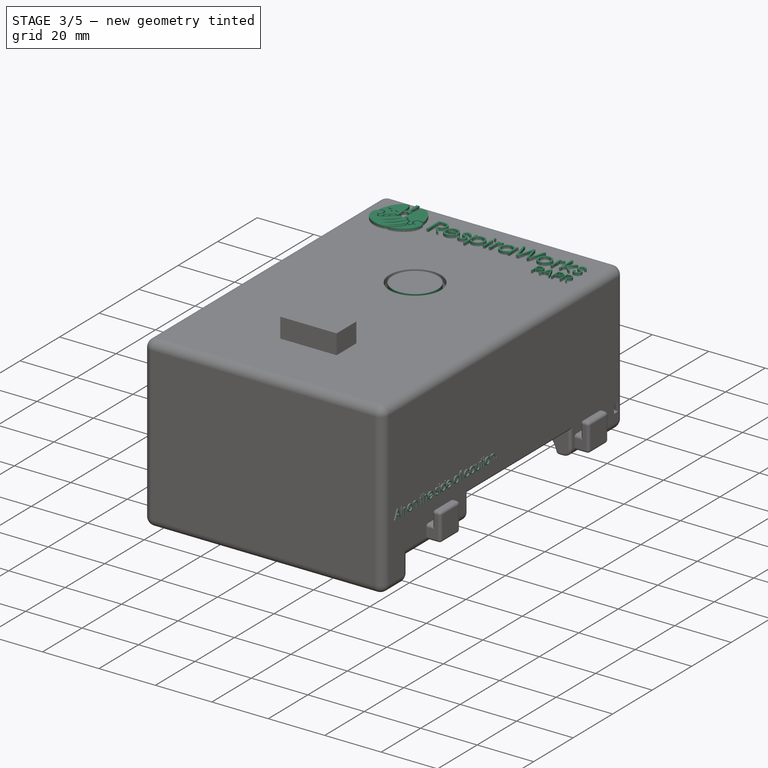
[diagram: stage 3 of 5 — iso view after this stage's code; geometry added in this stage tinted green]
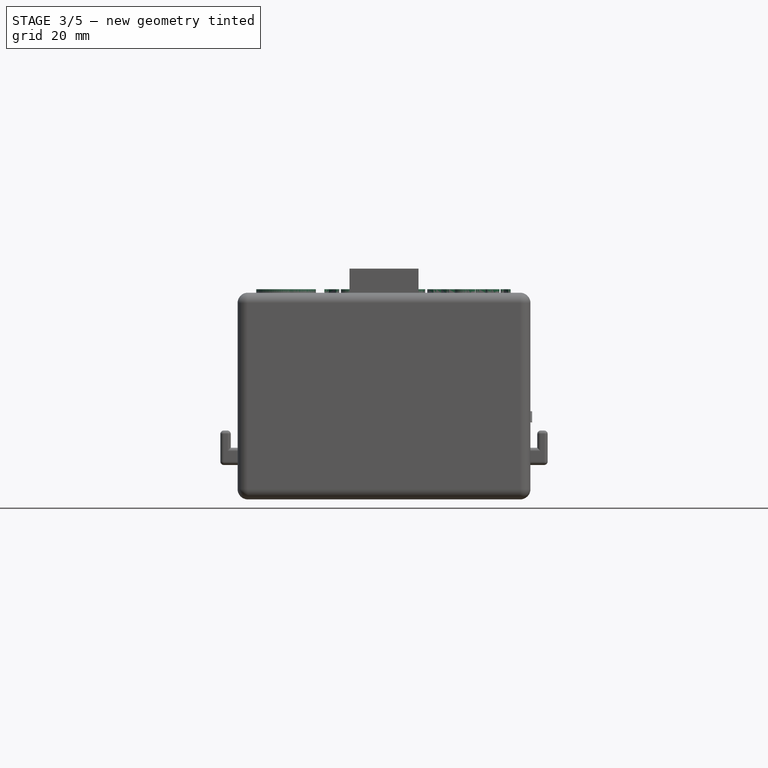
[diagram: stage 3 of 5 — front view after this stage's code; geometry added in this stage tinted green]
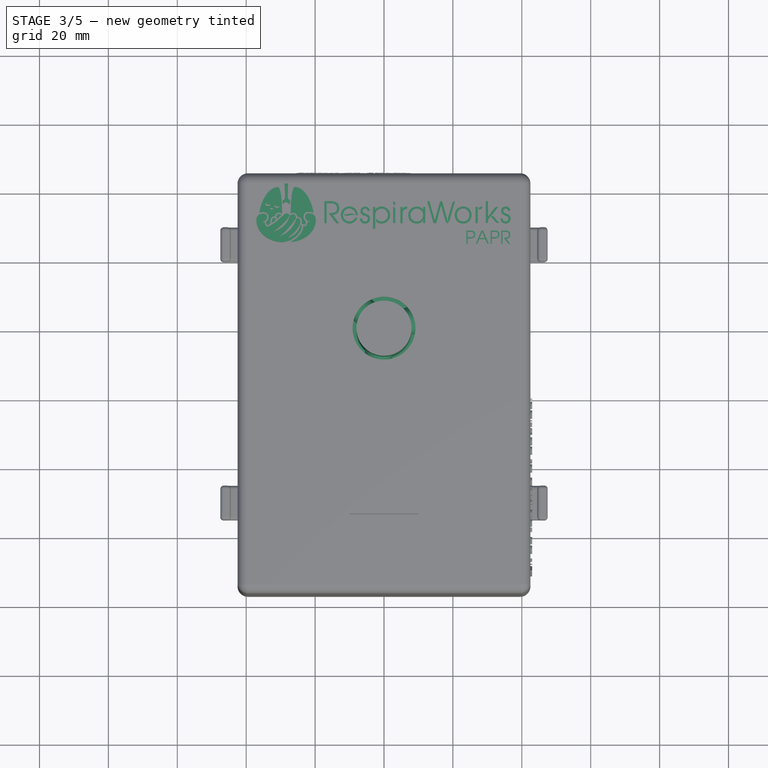
[diagram: stage 3 of 5 — top view after this stage's code; geometry added in this stage tinted green]
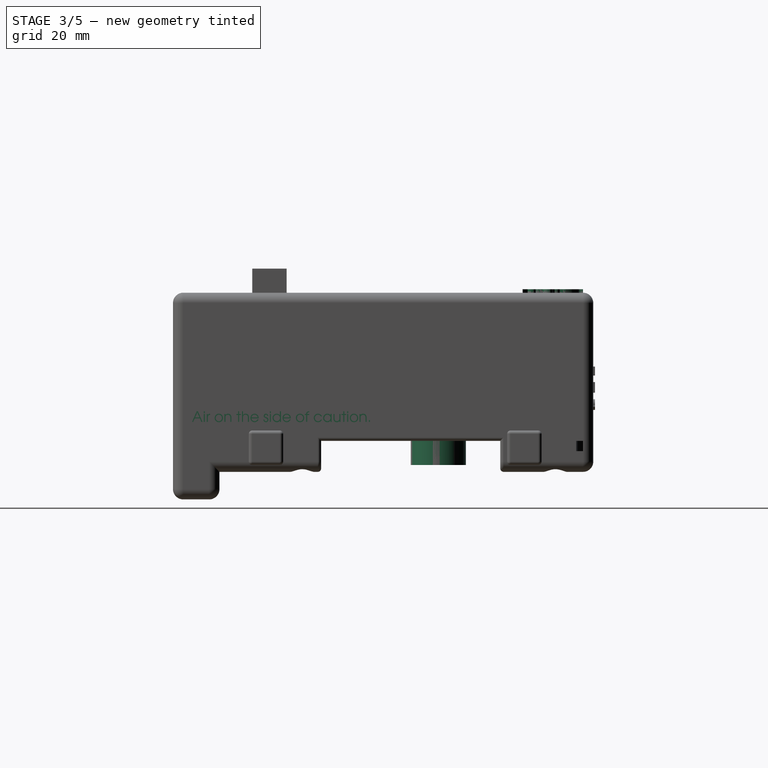
[diagram: stage 3 of 5 — right view after this stage's code; geometry added in this stage tinted green]
FEATURE [Part::Cylinder] Cylinder027
  Angle = 360
  AttacherType = Attacher::AttachEngine3D
  Height = 1.5
  Radius = 18
FEATURE [Part::Cylinder] Cylinder030  label="downpipe"
  Angle = 360
  AttacherType = Attacher::AttachEngine3D
  Height = 50
  Placement = pos=(0,0,-10) rot=(0,0,1;0rad)
  Radius = 8
FEATURE [Part::Cylinder] Cylinder031  label="Cylinder029"
  Angle = 360
  AttacherType = Attacher::AttachEngine3D
  Height = 10
  Placement = pos=(3.3287,1.08156,22.1118) rot=(-0.154554,0.975821,0.154554;1.59527rad)
  Radius = 4
FEATURE [Part::FeaturePython] Array003  # Draft array (typed FeaturePython)
  Angle = 360
  ArrayType = 1
  Axis = (0,0,1)
  Base = -> Cylinder031
  Center = (0,0,0)
  Fuse = false
  IntervalAxis = (0,0,0)
  IntervalX = (1,0,0)
  IntervalY = (0,1,0)
  IntervalZ = (0,0,1)
  NumberPolar = 3
  NumberX = 1
  NumberY = 1
  NumberZ = 1
FEATURE [Part::MultiFuse] Fusion003  label="nInletFilterBayonet"
  Shapes = -> [Cylinder030,Array003]
FEATURE [Part::Part2DObjectPython] ShapeString002  # Draft 2D object (typed FeaturePython)
  FontFile = <path>
  Size = 2
  String = Air on the side of caution.
  Tracking = 0
FEATURE [Part::Extrusion] Extrude002  label="pBodyText-CustomMessage"
  Base = -> ShapeString002
  Dir = (0,0,1)
  DirMode = 2
  FaceMakerClass = Part::FaceMakerBullseye
  LengthFwd = 0.5
  LengthRev = 0
  Placement = pos=(42.5,-71.5,2.5) rot=(0.57735,0.57735,0.57735;2.0944rad)
  Solid = false
  Symmetric = false
FEATURE [Part::Part2DObjectPython] ShapeString003  # Draft 2D object (typed FeaturePython)
  FontFile = <path>
  Size = 2.5
  String = PAPR
  Tracking = 0
FEATURE [Part::Extrusion] Extrude031  label="pBodyText-PAPR"
  Base = -> ShapeString003
  Dir = (0,0,1)
  DirMode = 2
  FaceMakerClass = Part::FaceMakerBullseye
  LengthFwd = 1
  LengthRev = 0
  Placement = pos=(23.5,24.5,40) rot=(0,0,1;0rad)
  Solid = false
  Symmetric = false
FEATURE [Part::Feature] Face002
  shape: bbox 9.112 x 9.183 x 2e-07 mm, 1 faces, 0 solids (baked)
FEATURE [Part::Extrusion] Extrude036  label="p-m-a"
  Base = -> Face002
  Dir = (0,0,-1)
  DirMode = 2
  FaceMakerClass = Part::FaceMakerBullseye
  LengthFwd = 1
  LengthRev = 0
  Solid = false
  Symmetric = false
FEATURE [Part::Feature] Face010
  shape: bbox 5.363 x 9.106 x 2e-07 mm, 1 faces, 0 solids (baked)
FEATURE [Part::Extrusion] Extrude010  label="p-m-s2"
  Base = -> Face010
  Dir = (0,0,-1)
  DirMode = 2
  FaceMakerClass = Part::FaceMakerBullseye
  LengthFwd = 1
  LengthRev = 0
  Solid = false
  Symmetric = false
FEATURE [Part::Feature] Face008
  shape: bbox 5.94 x 1.154 x 2e-07 mm, 1 faces, 0 solids (baked)
FEATURE [Part::Extrusion] Extrude008  label="p-m-e-2"
  Base = -> Face008
  Dir = (0,0,-1)
  DirMode = 2
  FaceMakerClass = Part::FaceMakerBullseye
  LengthFwd = 1
  LengthRev = 0
  Solid = false
  Symmetric = false
FEATURE [Part::Feature] Face009
  shape: bbox 7.842 x 11.56 x 2e-07 mm, 1 faces, 0 solids (baked)
FEATURE [Part::Extrusion] Extrude009  label="p-m-R"
  Base = -> Face009
  Dir = (0,0,-1)
  DirMode = 2
  FaceMakerClass = Part::FaceMakerBullseye
  LengthFwd = 1
  LengthRev = 0
  Solid = false
  Symmetric = false
FEATURE [Part::Feature] Face014
  shape: bbox 1.159 x 8.554 x 2e-07 mm, 1 faces, 0 solids (baked)
FEATURE [Part::Extrusion] Extrude014  label="p-r2-1"
  Base = -> Face014
  Dir = (0,0,1)
  DirMode = 2
  FaceMakerClass = Part::FaceMakerBullseye
  LengthFwd = 1
  LengthRev = 0
  Solid = false
  Symmetric = false
FEATURE [Part::Feature] Face
  shape: bbox 3.58 x 8.758 x 2e-07 mm, 1 faces, 0 solids (baked)
FEATURE [Part::Extrusion] Extrude037  label="p-m-r1"
  Base = -> Face
  Dir = (0,0,-1)
  DirMode = 2
  FaceMakerClass = Part::FaceMakerBullseye
  LengthFwd = 1
  LengthRev = 0
  Solid = false
  Symmetric = false
FEATURE [Part::Feature] Face005
  shape: bbox 1.156 x 1.971 x 2e-07 mm, 1 faces, 0 solids (baked)
FEATURE [Part::Extrusion] Extrude005  label="p-m-i-1"
  Base = -> Face005
  Dir = (0,0,-1)
  DirMode = 2
  FaceMakerClass = Part::FaceMakerBullseye
  LengthFwd = 1
  LengthRev = 0
  Solid = false
  Symmetric = false
FEATURE [Part::Feature] Face012
  shape: bbox 8.927 x 8.959 x 2e-07 mm, 1 faces, 0 solids (baked)
FEATURE [Part::Extrusion] Extrude012  label="p-m-o"
  Base = -> Face012
  Dir = (0,0,-1)
  DirMode = 2
  FaceMakerClass = Part::FaceMakerBullseye
  LengthFwd = 1
  LengthRev = 0
  Solid = false
  Symmetric = false
FEATURE [Part::Feature] Face016
  shape: bbox 4.239 x 3.757 x 2e-07 mm, 1 faces, 0 solids (baked)
FEATURE [Part::Extrusion] Extrude016  label="p-k-2"
  Base = -> Face016
  Dir = (0,0,1)
  DirMode = 2
  FaceMakerClass = Part::FaceMakerBullseye
  LengthFwd = 1
  LengthRev = 0
  Solid = false
  Symmetric = false
FEATURE [Part::Feature] Face001
  shape: bbox 6.699 x 6.927 x 2e-07 mm, 1 faces, 0 solids (baked)
FEATURE [Part::Extrusion] Extrude001  label="n-a"
  Base = -> Face001
  Dir = (0,0,1)
  DirMode = 2
  FaceMakerClass = Part::FaceMakerBullseye
  LengthFwd = 1
  LengthRev = 0
  Solid = false
  Symmetric = false
FEATURE [Part::Feature] Face013
  shape: bbox 1.995 x 1.775 x 2e-07 mm, 1 faces, 0 solids (baked)
FEATURE [Part::Extrusion] Extrude013  label="p-r2-2"
  Base = -> Face013
  Dir = (0,0,1)
  DirMode = 2
  FaceMakerClass = Part::FaceMakerBullseye
  LengthFwd = 1
  LengthRev = 0
  Solid = false
  Symmetric = false
FEATURE [Part::Feature] Face015
  shape: bbox 6.567 x 11.56 x 2e-07 mm, 1 faces, 0 solids (baked)
FEATURE [Part::Extrusion] Extrude015  label="p-k-1"
  Base = -> Face015
  Dir = (0,0,1)
  DirMode = 2
  FaceMakerClass = Part::FaceMakerBullseye
  LengthFwd = 1
  LengthRev = 0
  Solid = false
  Symmetric = false
FEATURE [Part::Feature] Face017
  shape: bbox 3.769 x 11.29 x 2e-07 mm, 1 faces, 0 solids (baked)
FEATURE [Part::Extrusion] Extrude017  label="p-W-2"
  Base = -> Face017
  Dir = (0,0,1)
  DirMode = 2
  FaceMakerClass = Part::FaceMakerBullseye
  LengthFwd = 1
  LengthRev = 0
  Solid = false
  Symmetric = false
FEATURE [Part::Feature] Face018
  shape: bbox 11.13 x 11.6 x 2e-07 mm, 1 faces, 0 solids (baked)
FEATURE [Part::Extrusion] Extrude018  label="p-W-1"
  Base = -> Face018
  Dir = (0,0,1)
  DirMode = 2
  FaceMakerClass = Part::FaceMakerBullseye
  LengthFwd = 1
  LengthRev = 0
  Solid = false
  Symmetric = false
FEATURE [Part::Feature] Face004
  shape: bbox 1.156 x 8.557 x 2e-07 mm, 1 faces, 0 solids (baked)
FEATURE [Part::Extrusion] Extrude004  label="p-m-i-2"
  Base = -> Face004
  Dir = (0,0,-1)
  DirMode = 2
  FaceMakerClass = Part::FaceMakerBullseye
  LengthFwd = 1
  LengthRev = 0
  Solid = false
  Symmetric = false
FEATURE [Part::Feature] Face003
  shape: bbox 5.342 x 8.932 x 2e-07 mm, 1 faces, 0 solids (baked)
FEATURE [Part::Extrusion] Extrude003  label="p-m-s1"
  Base = -> Face003
  Dir = (0,0,-1)
  DirMode = 2
  FaceMakerClass = Part::FaceMakerBullseye
  LengthFwd = 1
  LengthRev = 0
  Solid = false
  Symmetric = false
FEATURE [Part::MultiFuse] Fusion059  label="p-m-text"
  Shapes = -> [Extrude012,Extrude010,Extrude009,Extrude008,Extrude005,Extrude004,Extrude003,Extrude036,Extrude037]
FEATURE [Part::Mirroring] Part__Mirroring002  label="p-m-text (Mirror #3)"
  Base = (0,0,0)
  Normal = (0,0,1)
  Source = -> Fusion059
FEATURE [Part::Feature] Face006
  shape: bbox 9.051 x 12.05 x 2e-07 mm, 1 faces, 0 solids (baked)
FEATURE [Part::Extrusion] Extrude006  label="p-p"
  Base = -> Face006
  Dir = (0,0,1)
  DirMode = 2
  FaceMakerClass = Part::FaceMakerBullseye
  LengthFwd = 1
  LengthRev = 0
  Solid = false
  Symmetric = false
FEATURE [Part::Feature] Face007
  shape: bbox 9.142 x 9.001 x 2e-07 mm, 1 faces, 0 solids (baked)
FEATURE [Part::Extrusion] Extrude007  label="p-e-1"
  Base = -> Face007
  Dir = (0,0,1)
  DirMode = 2
  FaceMakerClass = Part::FaceMakerBullseye
  LengthFwd = 1
  LengthRev = 0
  Solid = false
  Symmetric = false
FEATURE [Part::MultiFuse] Fusion004  label="pText"
  Shapes = -> [Part__Mirroring002,Extrude018,Extrude017,Extrude016,Extrude015,Extrude014,Extrude013,Extrude007,Extrude006]
FEATURE [Part::Feature] Face011
  shape: bbox 6.583 x 6.832 x 2e-07 mm, 1 faces, 0 solids (baked)
FEATURE [Part::Extrusion] Extrude011  label="n-o"
  Base = -> Face011
  Dir = (0,0,1)
  DirMode = 2
  FaceMakerClass = Part::FaceMakerBullseye
  LengthFwd = 1
  LengthRev = 0
  Solid = false
  Symmetric = false
FEATURE [Part::MultiFuse] Fusion005  label="nText"
  Shapes = -> [Extrude011,Extrude001]
FEATURE [Part::Cut] Cut001  label="Text"
  Base = -> Fusion004
  Tool = -> Fusion005
FEATURE [Part::Feature] Face019
  shape: bbox 23.98 x 15.22 x 2e-07 mm, 1 faces, 0 solids (baked)
FEATURE [Part::Extrusion] Extrude019  label="p-m-LeftHand"
  Base = -> Face019
  Dir = (0,0,-1)
  DirMode = 2
  FaceMakerClass = Part::FaceMakerBullseye
  LengthFwd = 1
  LengthRev = 0
  Solid = false
  Symmetric = false
FEATURE [Part::Feature] Face021
  shape: bbox 2.22 x 2.625 x 2e-07 mm, 1 faces, 0 solids (baked)
FEATURE [Part::Extrusion] Extrude021  label="p-m-LeftFinger"
  Base = -> Face021
  Dir = (0,0,-1)
  DirMode = 2
  FaceMakerClass = Part::FaceMakerBullseye
  LengthFwd = 1
  LengthRev = 0
  Solid = false
  Symmetric = false
FEATURE [Part::Feature] Face022
  shape: bbox 2.744 x 2.564 x 2e-07 mm, 1 faces, 0 solids (baked)
FEATURE [Part::Extrusion] Extrude022  label="p-m-RightFinger"
  Base = -> Face022
  Dir = (0,0,-1)
  DirMode = 2
  FaceMakerClass = Part::FaceMakerBullseye
  LengthFwd = 1
  LengthRev = 0
  Solid = false
  Symmetric = false
FEATURE [Part::Feature] Face027
  shape: bbox 3.153 x 1.741 x 2e-07 mm, 1 faces, 0 solids (baked)
FEATURE [Part::Extrusion] Extrude027  label="n-m-LeftEye"
  Base = -> Face027
  Dir = (0,0,-1)
  DirMode = 2
  FaceMakerClass = Part::FaceMakerBullseye
  LengthFwd = 1
  LengthRev = 0
  Solid = false
  Symmetric = false
FEATURE [Part::Feature] Face028
  shape: bbox 12.09 x 20.21 x 2e-07 mm, 1 faces, 0 solids (baked)
FEATURE [Part::Extrusion] Extrude028  label="p-LeftLung"
  Base = -> Face028
  Dir = (0,0,1)
  DirMode = 2
  FaceMakerClass = Part::FaceMakerBullseye
  LengthFwd = 1
  LengthRev = 0
  Solid = false
  Symmetric = false
FEATURE [Part::Feature] Face023
  shape: bbox 4.011 x 10.85 x 2e-07 mm, 1 faces, 0 solids (baked)
FEATURE [Part::Extrusion] Extrude023  label="p-Trachea"
  Base = -> Face023
  Dir = (0,0,1)
  DirMode = 2
  FaceMakerClass = Part::FaceMakerBullseye
  LengthFwd = 1
  LengthRev = 0
  Solid = false
  Symmetric = false
FEATURE [Part::Feature] Face025
  shape: bbox 3.134 x 1.688 x 2e-07 mm, 1 faces, 0 solids (baked)
FEATURE [Part::Extrusion] Extrude025  label="n-m-RightEye"
  Base = -> Face025
  Dir = (0,0,-1)
  DirMode = 2
  FaceMakerClass = Part::FaceMakerBullseye
  LengthFwd = 1
  LengthRev = 0
  Solid = false
  Symmetric = false
FEATURE [Part::Feature] Face026
  shape: bbox 1.76 x 1.081 x 2e-07 mm, 1 faces, 0 solids (baked)
FEATURE [Part::Extrusion] Extrude026  label="n-m-Mouth"
  Base = -> Face026
  Dir = (0,0,-1)
  DirMode = 2
  FaceMakerClass = Part::FaceMakerBullseye
  LengthFwd = 1
  LengthRev = 0
  Solid = false
  Symmetric = false
FEATURE [Part::MultiFuse] Fusion060  label="n-m-Face"
  Shapes = -> [Extrude027,Extrude026,Extrude025]
FEATURE [Part::Mirroring] Part__Mirroring  label="nLogo (Mirror #1)"
  Base = (0,0,0)
  Normal = (0,0,1)
  Source = -> Fusion060
FEATURE [Part::Feature] Face024
  shape: bbox 12.13 x 20.08 x 2e-07 mm, 1 faces, 0 solids (baked)
FEATURE [Part::Extrusion] Extrude024  label="p-m-RightLung"
  Base = -> Face024
  Dir = (0,0,-1)
  DirMode = 2
  FaceMakerClass = Part::FaceMakerBullseye
  LengthFwd = 1
  LengthRev = 0
  Solid = false
  Symmetric = false
FEATURE [Part::MultiFuse] Fusion001  label="p-m-Lungs"
  Shapes = -> [Extrude024,Extrude022,Extrude021,Extrude020,Extrude019]
FEATURE [Part::Mirroring] Part__Mirroring001  label="p-m-Lungs (Mirror #2)"
  Base = (0,0,0)
  Normal = (0,0,1)
  Source = -> Fusion001
FEATURE [Part::MultiFuse] Fusion058  label="pLogo"
  Shapes = -> [Part__Mirroring001,Extrude028,Extrude023]
FEATURE [Part::Cut] Cut019  label="Logo"
  Base = -> Fusion058
  Tool = -> Part__Mirroring
FEATURE [Part::MultiFuse] Fusion006  label="RW-LogoPlusText-Extrude-1mm"
  Shapes = -> [Cut019,Cut001]
FEATURE [Part::FeaturePython] Clone  label="pBody-LogoCloneScaled"  # Draft clone (typed FeaturePython)
  AttacherType = Attacher::AttachEngine3D
  Fuse = false
  Objects = -> [Fusion006]
  Placement = pos=(-37.5,42,40) rot=(0,0,1;0rad)
  Scale = (0.55,0.55,1)
FEATURE [Part::MultiFuse] Fusion099  label="pBody"
  Shapes = -> [Fillet003,Clone,Extrude031,Extrude002,Extrude039,Extrude038,Extrude040,Box043]
FEATURE [Part::Cut] Cut046  label="BodyMinusInlet"
  Base = -> Fusion099
  Tool = -> Fusion100
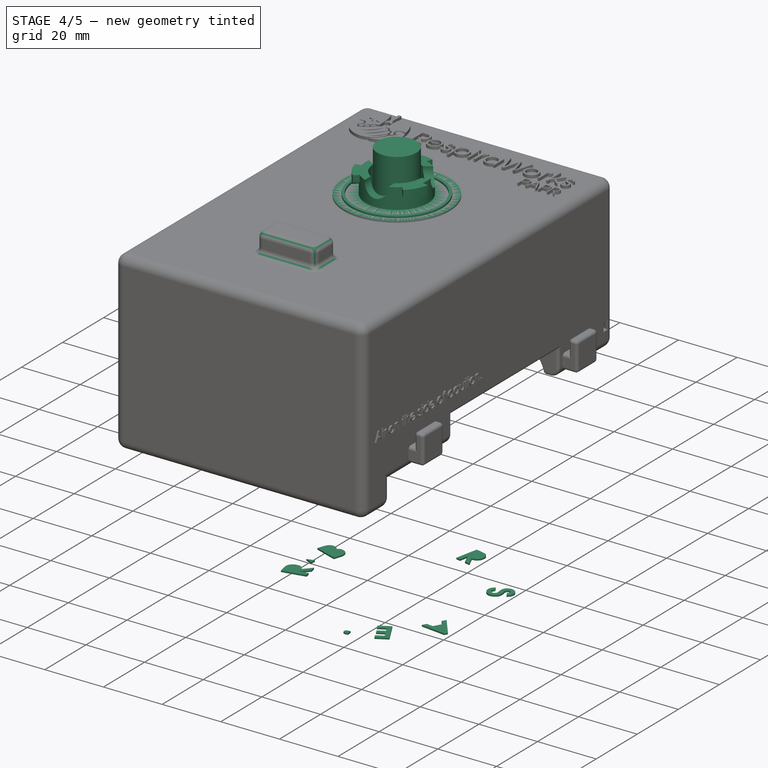
[diagram: stage 4 of 5 — iso view after this stage's code; geometry added in this stage tinted green]
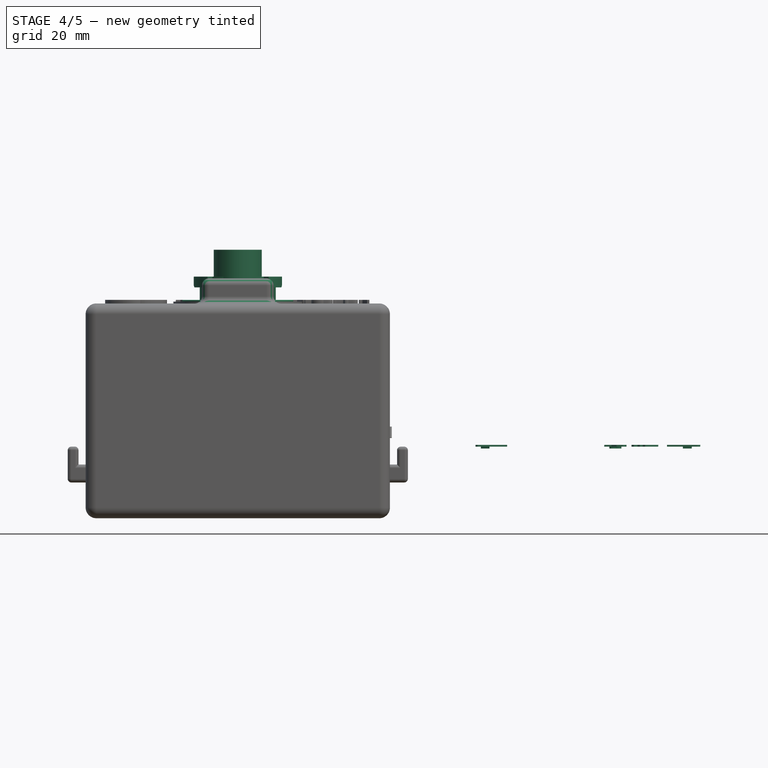
[diagram: stage 4 of 5 — front view after this stage's code; geometry added in this stage tinted green]
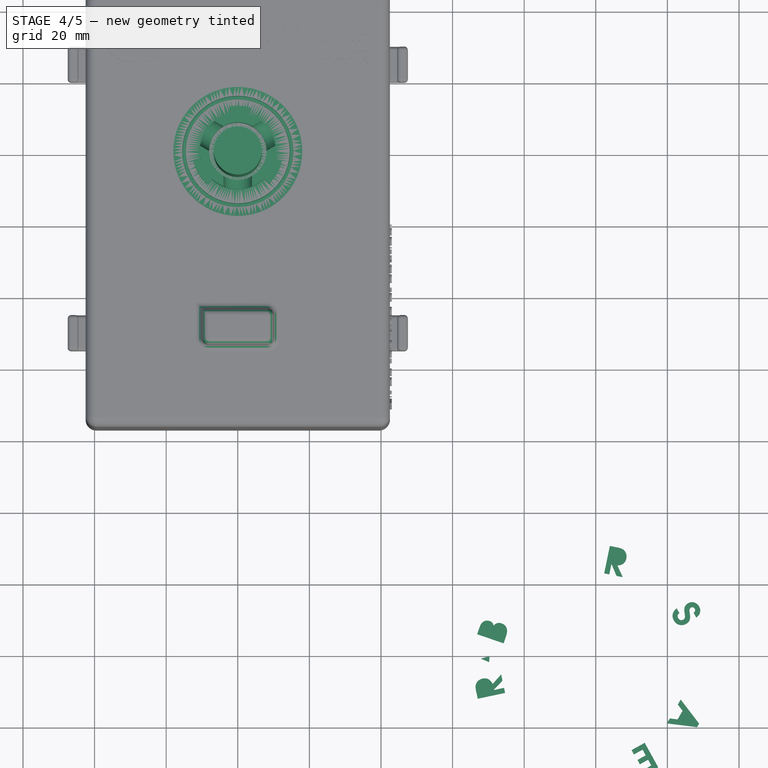
[diagram: stage 4 of 5 — top view after this stage's code; geometry added in this stage tinted green]
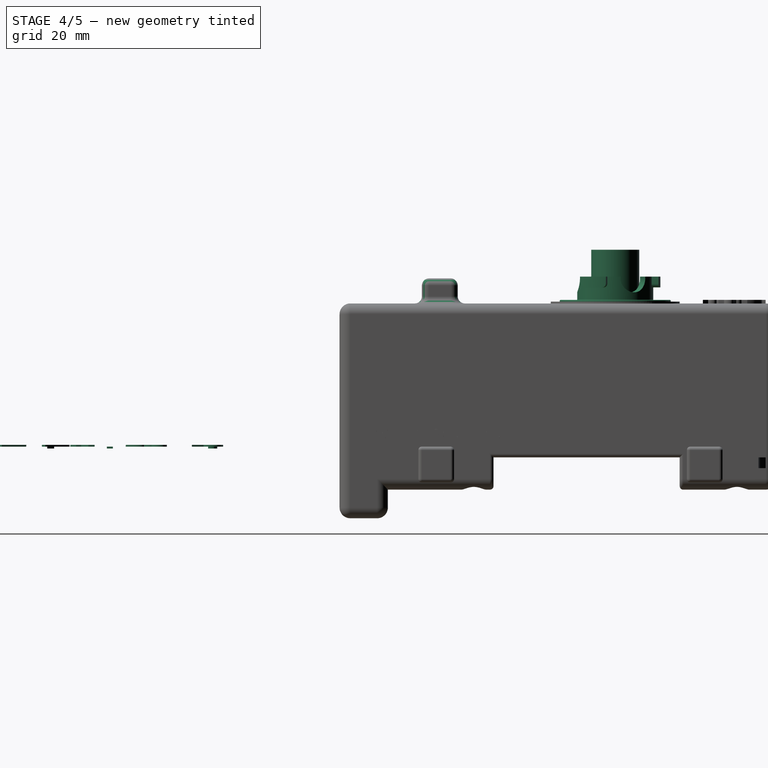
[diagram: stage 4 of 5 — right view after this stage's code; geometry added in this stage tinted green]
FEATURE [Part::Cylinder] Cylinder005  label="nOutletTube"
  Angle = 360
  AttacherType = Attacher::AttachEngine3D
  Height = 40
  Placement = pos=(0,0,15) rot=(0,0,1;0rad)
  Radius = 6.7
FEATURE [Part::Part2DObjectPython] ShapeString  # Draft 2D object (typed FeaturePython)
  FontFile = <path>
  Size = 5
  String = V2
  Tracking = 0
FEATURE [Sketcher::SketchObject] Sketch002  label="BayonetTooth001"
  Placement = pos=(0,0,0) rot=(1,0,0;1.5708rad)
  sketch-geometry (4):
    g0: LineSegment StartX=9.125 StartY=8.5 StartZ=0 EndX=12.625 EndY=8.5 EndZ=0
    g1: LineSegment StartX=12.625 StartY=8.5 StartZ=0 EndX=12.625 EndY=5.5 EndZ=0
    g2: LineSegment StartX=12.625 StartY=5.5 StartZ=0 EndX=9.125 EndY=5.5 EndZ=0
    g3: LineSegment StartX=9.125 StartY=5.5 StartZ=0 EndX=9.125 EndY=8.5 EndZ=0
  constraints (12):
    c: Coincident(g0,g1)
    c: Coincident(g1,g2)
    c: Coincident(g2,g3)
    c: Coincident(g3,g0)
    c: Horizontal(g0)
    c: Horizontal(g2)
    c: Vertical(g1)
    c: Vertical(g3)
    c: DistanceY(g1,g0) = 3
    c: DistanceX(g2,g1) = 3.5
    c: DistanceY(g-1,g0) = 8.5
    c: DistanceX(g-1,g2) = 9.125
FEATURE [Sketcher::SketchObject] Sketch003  label="BayonetTooth002"
  Placement = pos=(0,0,0) rot=(1,0,0;1.5708rad)
  sketch-geometry (4):
    g0: LineSegment StartX=9.125 StartY=8.5 StartZ=0 EndX=12.625 EndY=8.5 EndZ=0
    g1: LineSegment StartX=12.625 StartY=8.5 StartZ=0 EndX=12.625 EndY=5.5 EndZ=0
    g2: LineSegment StartX=12.625 StartY=5.5 StartZ=0 EndX=9.125 EndY=5.5 EndZ=0
    g3: LineSegment StartX=9.125 StartY=5.5 StartZ=0 EndX=9.125 EndY=8.5 EndZ=0
  constraints (12):
    c: Coincident(g0,g1)
    c: Coincident(g1,g2)
    c: Coincident(g2,g3)
    c: Coincident(g3,g0)
    c: Horizontal(g0)
    c: Horizontal(g2)
    c: Vertical(g1)
    c: Vertical(g3)
    c: DistanceY(g1,g0) = 3
    c: DistanceX(g2,g1) = 3.5
    c: DistanceY(g-1,g0) = 8.5
    c: DistanceX(g-1,g2) = 9.125
FEATURE [Sketcher::SketchObject] Sketch  label="GrooveProfile"
  Placement = pos=(0,0,0) rot=(1,0,0;1.5708rad)
  sketch-geometry (4):
    g0: LineSegment StartX=15.5 StartY=2 StartZ=0 EndX=14.5 EndY=2 EndZ=0
    g1: LineSegment StartX=14.5 StartY=2 StartZ=0 EndX=14.5 EndY=1 EndZ=0
    g2: LineSegment StartX=14.5 StartY=1 StartZ=0 EndX=15.5 EndY=1 EndZ=0
    g3: LineSegment StartX=15.5 StartY=1 StartZ=0 EndX=15.5 EndY=2 EndZ=0
  constraints (12):
    c: Coincident(g0,g1)
    c: Coincident(g1,g2)
    c: Coincident(g2,g3)
    c: Coincident(g3,g0)
    c: Horizontal(g0)
    c: Horizontal(g2)
    c: Vertical(g1)
    c: Vertical(g3)
    c: DistanceY(g1,g0) = 1
    c: Equal(g0,g1)
    c: DistanceX(g-1,g0) = 15.5
    c: DistanceY(g1,g-1) = -1
FEATURE [Sketcher::SketchObject] Sketch001  label="BayonetTooth"
  Placement = pos=(0,0,0) rot=(1,0,0;1.5708rad)
  sketch-geometry (4):
    g0: LineSegment StartX=9.125 StartY=8.5 StartZ=0 EndX=12.625 EndY=8.5 EndZ=0
    g1: LineSegment StartX=12.625 StartY=8.5 StartZ=0 EndX=12.625 EndY=5.5 EndZ=0
    g2: LineSegment StartX=12.625 StartY=5.5 StartZ=0 EndX=9.125 EndY=5.5 EndZ=0
    g3: LineSegment StartX=9.125 StartY=5.5 StartZ=0 EndX=9.125 EndY=8.5 EndZ=0
  constraints (12):
    c: Coincident(g0,g1)
    c: Coincident(g1,g2)
    c: Coincident(g2,g3)
    c: Coincident(g3,g0)
    c: Horizontal(g0)
    c: Horizontal(g2)
    c: Vertical(g1)
    c: Vertical(g3)
    c: DistanceY(g1,g0) = 3
    c: DistanceX(g2,g1) = 3.5
    c: DistanceY(g-1,g0) = 8.5
    c: DistanceX(g-1,g2) = 9.125
FEATURE [Part::Cylinder] Cylinder026
  Angle = 360
  AttacherType = Attacher::AttachEngine3D
  Height = 8.5
  Radius = 10.625
FEATURE [Part::Cylinder] Cylinder028  label="deprecatedDownpipe"
  Angle = 360
  AttacherType = Attacher::AttachEngine3D
  Height = 8.5
  Radius = 1
FEATURE [Part::Cylinder] Cylinder029  label="OuterBody"
  Angle = 360
  AttacherType = Attacher::AttachEngine3D
  Height = 15
  Radius = 29.75
FEATURE [Part::Revolution] Revolve003  label="LongTooth2"
  Angle = 35
  Axis = (0,0,1)
  Base = (0,0,0)
  FaceMakerClass = Part::FaceMakerBullseye
  Placement = pos=(0,0,0) rot=(0,0,1;3.15905rad)
  Solid = true
  Source = -> Sketch003
  Symmetric = false
FEATURE [Part::Fillet] Fillet010
  Base = -> Revolve003
  Edges = 1 edges r=1: [Edge10]
FEATURE [Part::Fillet] Fillet011
  Base = -> Fillet010
  Edges = 1 edges r=1: [Edge7]
FEATURE [Part::Revolution] Revolve
  Angle = 360
  Axis = (0,0,1)
  Base = (0,0,0)
  FaceMakerClass = Part::FaceMakerBullseye
  Solid = true
  Source = -> Sketch
  Symmetric = false
FEATURE [Part::Fillet] Fillet013
  Base = -> Revolve
  Edges = 1 edges r=0.25: [Edge5]
FEATURE [Part::Fillet] Fillet012
  Base = -> Fillet013
  Edges = 1 edges r=0.25: [Edge2]
FEATURE [Part::Fillet] Fillet008
  Base = -> Fillet012
  Edges = 1 edges r=0.25: [Edge10]
FEATURE [Part::Fillet] Fillet009
  Base = -> Fillet008
  Edges = 1 edges r=0.25: [Edge8]
FEATURE [Part::Revolution] Revolve001  label="LongTooth1"
  Angle = 35
  Axis = (0,0,1)
  Base = (0,0,0)
  FaceMakerClass = Part::FaceMakerBullseye
  Placement = pos=(0,0,0) rot=(0,0,-1;1.02974rad)
  Solid = true
  Source = -> Sketch001
  Symmetric = false
FEATURE [Part::Fillet] Fillet006
  Base = -> Revolve001
  Edges = 1 edges r=1: [Edge10]
FEATURE [Part::Fillet] Fillet007
  Base = -> Fillet006
  Edges = 1 edges r=1: [Edge7]
FEATURE [Part::Revolution] Revolve002  label="ShortTooth"
  Angle = 28.4
  Axis = (0,0,1)
  Base = (0,0,0)
  FaceMakerClass = Part::FaceMakerBullseye
  Placement = pos=(0,0,0) rot=(0,0,1;1.06465rad)
  Solid = true
  Source = -> Sketch002
  Symmetric = false
FEATURE [Part::Fillet] Fillet004
  Base = -> Revolve002
  Edges = 1 edges r=1: [Edge10]
FEATURE [Part::Fillet] Fillet005
  Base = -> Fillet004
  Edges = 1 edges r=1: [Edge7]
FEATURE [Part::MultiFuse] Fusion022
  Shapes = -> [Cylinder027,Cylinder026]
FEATURE [Part::Extrusion] Extrude
  Base = -> ShapeString
  Dir = (0,0,1)
  DirMode = 2
  FaceMakerClass = Part::FaceMakerBullseye
  LengthFwd = 0.5
  LengthRev = 0
  Placement = pos=(-11,4,0.5) rot=(0.707107,-0.707107,0;3.14159rad)
  Solid = false
  Symmetric = false
FEATURE [Part::Cone] Cone002  label="BlowerInlet001"
  Angle = 360
  AttacherType = Attacher::AttachEngine3D
  Height = 13
  Radius1 = 27.75
  Radius2 = 27.65
FEATURE [Part::Cut] Cut005  label="OutletCap"
  Base = -> Cylinder029
  Tool = -> Cone002
FEATURE [Part::Cut] Cut006
  Base = -> Fusion022
  Tool = -> Cylinder028
FEATURE [Part::Fillet] Fillet014
  Base = -> Cut006
  Edges = 1 edges r=0.5: [Edge3]
FEATURE [Part::Cut] Cut007
  Base = -> Fillet014
  Tool = -> Extrude
FEATURE [Part::MultiFuse] Fusion021  label="BayonetMtestV2"
  Placement = pos=(0,0,14) rot=(0,0,1;0rad)
  Shapes = -> [Fillet011,Fillet005,Fillet007,Fillet009,Cut007]
FEATURE [Part::MultiFuse] Fusion002  label="pInletFilterBayonet"
  Shapes = -> [Cut005,Fusion021]
FEATURE [Part::Cut] Cut008  label="AddLast-InletFilterBayonet"
  Base = -> Fusion002
  Placement = pos=(0,0,25) rot=(0,0,1;0.20944rad)
  Tool = -> Fusion003
FEATURE [Part::Helix] Helix001
  Angle = 0
  AttacherType = Attacher::AttachEngine3D
  Height = 30
  LocalCoord = 0
  Pitch = 0.79
  Radius = 1.7526
  Style = 1
FEATURE [Part::Helix] Helix002
  Angle = 0
  AttacherType = Attacher::AttachEngine3D
  Height = 30
  LocalCoord = 0
  Pitch = 0.79
  Radius = 1.7526
  Style = 1
FEATURE [Part::Cylinder] Cylinder061  label="nNotchInner"
  Angle = 360
  AttacherType = Attacher::AttachEngine3D
  Height = 2.4
  Placement = pos=(0,0,9.8) rot=(0,0,1;0rad)
  Radius = 8.6
FEATURE [Part::Cylinder] Cylinder062  label="nNotchOuter"
  Angle = 360
  AttacherType = Attacher::AttachEngine3D
  Height = 2.4
  Placement = pos=(0,0,9.8) rot=(0,0,1;0rad)
  Radius = 10.75
FEATURE [Part::Cut] Cut  label="nOutletNotch"
  Base = -> Cylinder062
  Tool = -> Cylinder061
FEATURE [Part::Cylinder] Cylinder  label="p-nOutletBlowerOutlet"
  Angle = 360
  AttacherType = Attacher::AttachEngine3D
  Height = 7.5
  Radius = 8.7
FEATURE [Part::Extrusion] Extrude072  label="nExtrude024"
  Base = -> Face054
  Dir = (0,0,-1)
  DirMode = 2
  FaceMakerClass = Part::FaceMakerBullseye
  LengthFwd = 0.5
  LengthRev = 0
  Solid = false
  Symmetric = false
FEATURE [Part::Extrusion] Extrude073  label="nExtrude025"
  Base = -> Face031
  Dir = (0,0,-1)
  DirMode = 2
  FaceMakerClass = Part::FaceMakerBullseye
  LengthFwd = 0.5
  LengthRev = 0
  Solid = false
  Symmetric = false
FEATURE [Part::Extrusion] Extrude074
  Base = -> Face039
  Dir = (0,0,1)
  DirMode = 2
  FaceMakerClass = Part::FaceMakerBullseye
  LengthFwd = 0.5
  LengthRev = 0
  Solid = false
  Symmetric = false
FEATURE [Part::Extrusion] Extrude029
  Base = -> Face043
  Dir = (0,0,1)
  DirMode = 2
  FaceMakerClass = Part::FaceMakerBullseye
  LengthFwd = 0.5
  LengthRev = 0
  Solid = false
  Symmetric = false
FEATURE [Part::Extrusion] Extrude030  label="nExtrude030"
  Base = -> Face059
  Dir = (0,0,-1)
  DirMode = 2
  FaceMakerClass = Part::FaceMakerBullseye
  LengthFwd = 0.5
  LengthRev = 0
  Solid = false
  Symmetric = false
FEATURE [Part::Extrusion] Extrude075
  Base = -> Face060
  Dir = (0,0,1)
  DirMode = 2
  FaceMakerClass = Part::FaceMakerBullseye
  LengthFwd = 0.5
  LengthRev = 0
  Solid = false
  Symmetric = false
FEATURE [Part::Extrusion] Extrude076
  Base = -> Face061
  Dir = (0,0,1)
  DirMode = 2
  FaceMakerClass = Part::FaceMakerBullseye
  LengthFwd = 0.5
  LengthRev = 0
  Solid = false
  Symmetric = false
FEATURE [Part::Extrusion] Extrude077
  Base = -> Face062
  Dir = (0,0,1)
  DirMode = 2
  FaceMakerClass = Part::FaceMakerBullseye
  LengthFwd = 0.5
  LengthRev = 0
  Solid = false
  Symmetric = false
FEATURE [Part::Extrusion] Extrude078  label="nExtrude032"
  Base = -> Face063
  Dir = (0,0,-1)
  DirMode = 2
  FaceMakerClass = Part::FaceMakerBullseye
  LengthFwd = 0.5
  LengthRev = 0
  Solid = false
  Symmetric = false
FEATURE [Part::Extrusion] Extrude079
  Base = -> Face058
  Dir = (0,0,1)
  DirMode = 2
  FaceMakerClass = Part::FaceMakerBullseye
  LengthFwd = 0.5
  LengthRev = 0
  Solid = false
  Symmetric = false
FEATURE [Part::Cylinder] Cylinder086  label="n-nOutletBlowerOutlet"
  Angle = 360
  AttacherType = Attacher::AttachEngine3D
  Height = 7.5
  Radius = 5.9
FEATURE [Part::Cylinder] Cylinder087  label="nOutletInnerLip"
  Angle = 360
  AttacherType = Attacher::AttachEngine3D
  Height = 40
  Radius = 3.9
FEATURE [Part::Cut] Cut042  label="nBlowerOutlet"
  Base = -> Cylinder
  Tool = -> Cylinder086
FEATURE [Part::Cylinder] Cylinder088  label="nOutletBlowerOutletBase"
  Angle = 360
  AttacherType = Attacher::AttachEngine3D
  Height = 2.5
  Radius = 8.7
FEATURE [Part::MultiFuse] Fusion096  label="nOutletAdapter"
  Shapes = -> [Cylinder088,Cut042,Cylinder005,Cut,Cylinder087]
FEATURE [Part::MultiFuse] Fusion101  label="BodyMinusFillet"
  Shapes = -> [Cut046,Cut008]
FEATURE [Part::Fillet] Fillet036  label="TopLevelPart-Body"
  Base = -> Fusion101
  Edges = 21 edges: [Edge454 r=2,Edge461 r=3,Edge466 r=3,Edge474 r=3,Edge480 r=3,Edge484 r=3,Edge486 r=3,Edge491 r=3,Edge493 r=3,Edge511 r=5,Edge1383 r=2,Edge1384 r=2,Edge1385 r=2,Edge1386 r=2,Edge3882 r=2,Edge3883 r=2,Edge3885 r=2,Edge3886 r=2,Edge3887 r=2,Edge3888 r=2,Edge3889 r=2]
note: 7 file-system paths scrubbed to <path> (originals preserved in the JSON sidecar)
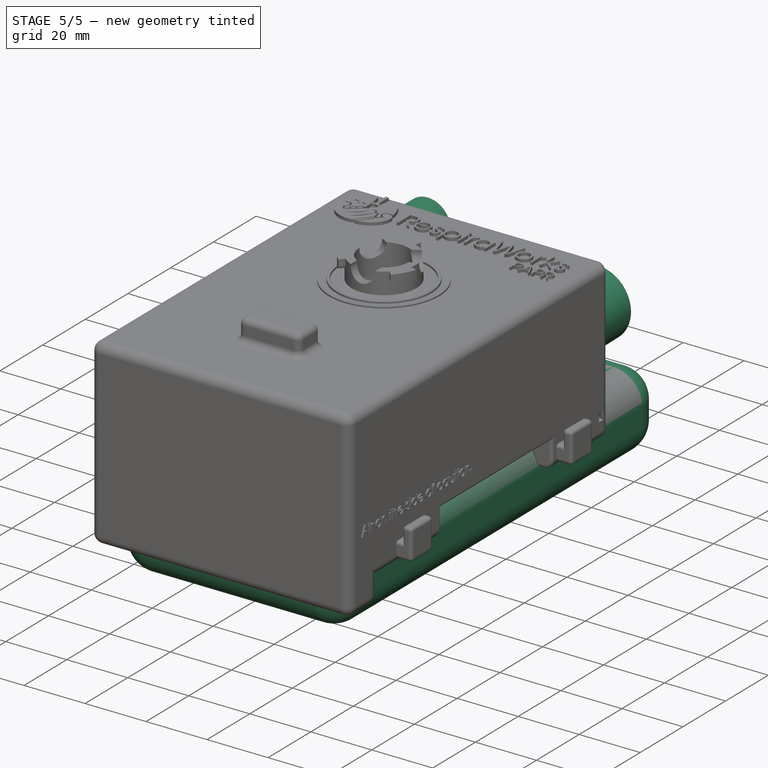
[diagram: stage 5 of 5 — iso view after this stage's code; geometry added in this stage tinted green]
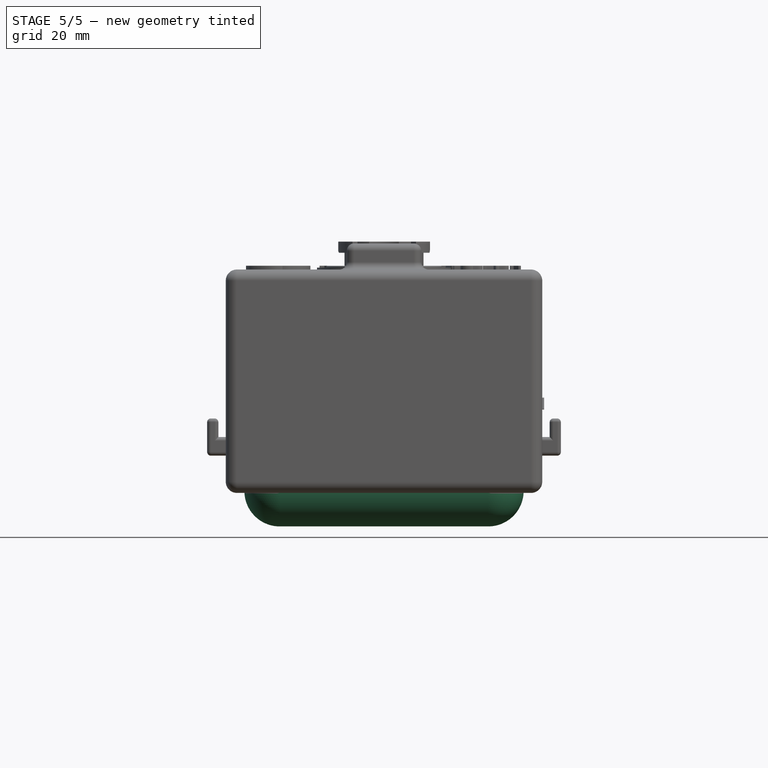
[diagram: stage 5 of 5 — front view after this stage's code; geometry added in this stage tinted green]
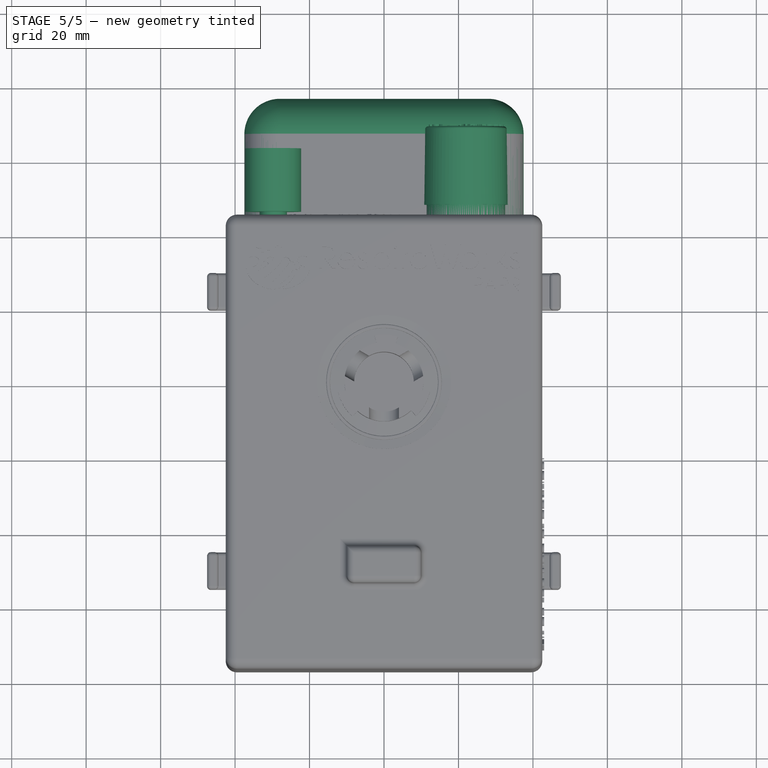
[diagram: stage 5 of 5 — top view after this stage's code; geometry added in this stage tinted green]
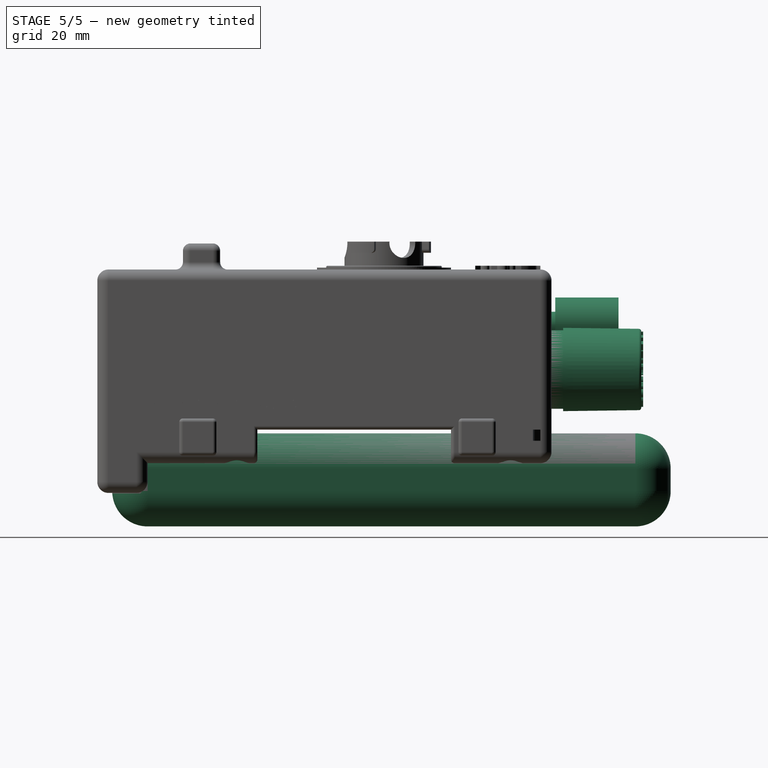
[diagram: stage 5 of 5 — right view after this stage's code; geometry added in this stage tinted green]
FEATURE [Part::Cylinder] Cylinder019  label="HousingOutlet"
  Angle = 360
  AttacherType = Attacher::AttachEngine3D
  Height = 40
  Radius = 10.55
FEATURE [Part::Cone] Cone001  label="22mmTaper"
  Angle = 360
  AttacherType = Attacher::AttachEngine3D
  Height = 21
  Placement = pos=(0,0,19) rot=(0,0,1;0rad)
  Radius1 = 11.19
  Radius2 = 10.92
FEATURE [Part::Box] Box022  label="Cube003"
  AttacherType = Attacher::AttachEngine3D
  Height = 25
  Length = 75
  Placement = pos=(-37.5,-73,-29) rot=(0,0,1;0rad)
  Width = 150
FEATURE [Part::Fillet] Fillet018  label="Visual-Battery"
  Base = -> Box022
  Edges = 12 edges r=9.5: [Edge1,Edge2,Edge3,Edge4,Edge5,Edge6,Edge7,Edge8,Edge9,Edge10,Edge11,Edge12]
FEATURE [Part::Cylinder] Cylinder047  label="PotShaft001"
  Angle = 360
  AttacherType = Attacher::AttachEngine3D
  Height = 10
  Placement = pos=(0,55,25) rot=(1,0,0;1.5708rad)
  Radius = 3.65
FEATURE [Part::Box] Box023  label="PotBody001"
  AttacherType = Attacher::AttachEngine3D
  Height = 36
  Length = 10.5
  Placement = pos=(-5.25,0,0) rot=(0,0,1;0rad)
  Width = 45
FEATURE [Part::MultiFuse] Fusion041  label="Visual-Potentiometer"
  Placement = pos=(-29.75,-2,0) rot=(0,0,1;0rad)
  Shapes = -> [Cylinder047,Box023]
FEATURE [Part::Cylinder] Cylinder048  label="Visual-Knob"
  Angle = 360
  AttacherType = Attacher::AttachEngine3D
  Height = 17
  Placement = pos=(-29.75,46,25) rot=(-1,0,0;1.5708rad)
  Radius = 7.5
FEATURE [Part::Box] Box024  label="pOutletKey"
  AttacherType = Attacher::AttachEngine3D
  Height = 24
  Length = 25.5
  Placement = pos=(-12.75,0,-13.15) rot=(0,0,1;0rad)
  Width = 2
FEATURE [Part::Cylinder] Cylinder063  label="nOutletKeyCylinder"
  Angle = 360
  AttacherType = Attacher::AttachEngine3D
  Height = 2
  Placement = pos=(0,0,0) rot=(-1,0,0;1.5708rad)
  Radius = 8.8
FEATURE [Part::Box] Box025  label="nOutletKeyRect"
  AttacherType = Attacher::AttachEngine3D
  Height = 12.85
  Length = 17.6
  Placement = pos=(-8.8,0,0) rot=(0,0,1;0rad)
  Width = 2
FEATURE [Part::MultiFuse] Fusion062  label="nOutletKey"
  Shapes = -> [Cylinder063,Box025]
FEATURE [Part::Feature] Face029
  shape: bbox 9.744 x 10.08 x 2e-07 mm, 1 faces, 0 solids (baked)
FEATURE [Part::Feature] Face030
  shape: bbox 8.53 x 8.577 x 2e-07 mm, 1 faces, 0 solids (baked)
FEATURE [Part::Feature] Face031
  shape: bbox 2.417 x 1.669 x 2e-07 mm, 1 faces, 0 solids (baked)
FEATURE [Part::Feature] Face032
  shape: bbox 8.554 x 8.603 x 2e-07 mm, 1 faces, 0 solids (baked)
FEATURE [Part::Feature] Face033
  shape: bbox 1.664 x 7.858 x 2e-07 mm, 1 faces, 0 solids (baked)
FEATURE [Part::Feature] Face034
  shape: bbox 2.379 x 2.512 x 2e-07 mm, 1 faces, 0 solids (baked)
FEATURE [Part::Feature] Face035
  shape: bbox 5.568 x 5.6 x 2e-07 mm, 1 faces, 0 solids (baked)
FEATURE [Part::Feature] Face036
  shape: bbox 5.582 x 5.568 x 2e-07 mm, 1 faces, 0 solids (baked)
FEATURE [Part::Feature] Face037
  shape: bbox 4.984 x 5.061 x 2e-07 mm, 1 faces, 0 solids (baked)
FEATURE [Part::Feature] Face038
  shape: bbox 1.801 x 2.496 x 2e-07 mm, 1 faces, 0 solids (baked)
FEATURE [Part::Feature] Face039
  shape: bbox 8.316 x 6.798 x 2e-07 mm, 1 faces, 0 solids (baked)
FEATURE [Part::Feature] Face040
  shape: bbox 8.613 x 8.371 x 2e-07 mm, 1 faces, 0 solids (baked)
FEATURE [Part::Feature] Face041
  shape: bbox 7.94 x 8.569 x 2e-07 mm, 1 faces, 0 solids (baked)
FEATURE [Part::Feature] Face042
  shape: bbox 5.216 x 8.315 x 2e-07 mm, 1 faces, 0 solids (baked)
FEATURE [Part::Feature] Face043
  shape: bbox 6.283 x 8.728 x 2e-07 mm, 1 faces, 0 solids (baked)
FEATURE [Part::Feature] Face044
  shape: bbox 7.415 x 8.972 x 2e-07 mm, 1 faces, 0 solids (baked)
FEATURE [Part::Feature] Face045
  shape: bbox 2.651 x 2.627 x 2e-07 mm, 1 faces, 0 solids (baked)
FEATURE [Part::Feature] Face046
  shape: bbox 2.409 x 2.217 x 2e-07 mm, 1 faces, 0 solids (baked)
FEATURE [Part::Feature] Face047
  shape: bbox 4.986 x 5.066 x 2e-07 mm, 1 faces, 0 solids (baked)
FEATURE [Part::Feature] Face048
  shape: bbox 1.885 x 1.992 x 2e-07 mm, 1 faces, 0 solids (baked)
FEATURE [Part::Feature] Face049
  shape: bbox 8.075 x 7.669 x 2e-07 mm, 1 faces, 0 solids (baked)
FEATURE [Part::Feature] Face050
  shape: bbox 6.14 x 8.179 x 2e-07 mm, 1 faces, 0 solids (baked)
FEATURE [Part::Feature] Face051
  shape: bbox 8.497 x 8.592 x 2e-07 mm, 1 faces, 0 solids (baked)
FEATURE [Part::Feature] Face052
  shape: bbox 8.682 x 5.276 x 2e-07 mm, 1 faces, 0 solids (baked)
FEATURE [Part::Feature] Face053
  shape: bbox 8.573 x 8.602 x 2e-07 mm, 1 faces, 0 solids (baked)
FEATURE [Part::Feature] Face054
  shape: bbox 1.906 x 1.772 x 2e-07 mm, 1 faces, 0 solids (baked)
FEATURE [Part::Feature] Face055
  shape: bbox 9.184 x 9.463 x 2e-07 mm, 1 faces, 0 solids (baked)
FEATURE [Part::Feature] Face056
  shape: bbox 4.509 x 5.218 x 2e-07 mm, 1 faces, 0 solids (baked)
FEATURE [Part::Feature] Face057
  shape: bbox 6.579 x 8.066 x 2e-07 mm, 1 faces, 0 solids (baked)
FEATURE [Part::Feature] Face058
  shape: bbox 8.512 x 6.398 x 2e-07 mm, 1 faces, 0 solids (baked)
FEATURE [Part::Feature] Face059
  shape: bbox 2.64 x 2.607 x 2e-07 mm, 1 faces, 0 solids (baked)
FEATURE [Part::Feature] Face060
  shape: bbox 7.999 x 6.686 x 2e-07 mm, 1 faces, 0 solids (baked)
FEATURE [Part::Feature] Face061
  shape: bbox 7.462 x 8.878 x 2e-07 mm, 1 faces, 0 solids (baked)
FEATURE [Part::Feature] Face062
  shape: bbox 8.985 x 7.716 x 2e-07 mm, 1 faces, 0 solids (baked)
FEATURE [Part::Feature] Face063
  shape: bbox 2.472 x 1.907 x 2e-07 mm, 1 faces, 0 solids (baked)
FEATURE [Part::Extrusion] Extrude047
  Base = -> Face050
  Dir = (0,0,1)
  DirMode = 2
  FaceMakerClass = Part::FaceMakerBullseye
  LengthFwd = 0.5
  LengthRev = 0
  Solid = false
  Symmetric = false
FEATURE [Part::Extrusion] Extrude048
  Base = -> Face041
  Dir = (0,0,1)
  DirMode = 2
  FaceMakerClass = Part::FaceMakerBullseye
  LengthFwd = 0.5
  LengthRev = 0
  Solid = false
  Symmetric = false
FEATURE [Part::Extrusion] Extrude049
  Base = -> Face030
  Dir = (0,0,1)
  DirMode = 2
  FaceMakerClass = Part::FaceMakerBullseye
  LengthFwd = 0.5
  LengthRev = 0
  Solid = false
  Symmetric = false
FEATURE [Part::Extrusion] Extrude050
  Base = -> Face032
  Dir = (0,0,1)
  DirMode = 2
  FaceMakerClass = Part::FaceMakerBullseye
  LengthFwd = 0.5
  LengthRev = 0
  Solid = false
  Symmetric = false
FEATURE [Part::Extrusion] Extrude051  label="nExtrude001"
  Base = -> Face045
  Dir = (0,0,-1)
  DirMode = 2
  FaceMakerClass = Part::FaceMakerBullseye
  LengthFwd = 0.5
  LengthRev = 0
  Solid = false
  Symmetric = false
FEATURE [Part::Extrusion] Extrude052  label="nExtrude022"
  Base = -> Face038
  Dir = (0,0,-1)
  DirMode = 2
  FaceMakerClass = Part::FaceMakerBullseye
  LengthFwd = 0.5
  LengthRev = 0
  Solid = false
  Symmetric = false
FEATURE [Part::Extrusion] Extrude053  label="nExtrude027"
  Base = -> Face034
  Dir = (0,0,-1)
  DirMode = 2
  FaceMakerClass = Part::FaceMakerBullseye
  LengthFwd = 0.5
  LengthRev = 0
  Solid = false
  Symmetric = false
FEATURE [Part::Extrusion] Extrude054
  Base = -> Face055
  Dir = (0,0,1)
  DirMode = 2
  FaceMakerClass = Part::FaceMakerBullseye
  LengthFwd = 0.5
  LengthRev = 0
  Solid = false
  Symmetric = false
FEATURE [Part::Extrusion] Extrude055
  Base = -> Face040
  Dir = (0,0,1)
  DirMode = 2
  FaceMakerClass = Part::FaceMakerBullseye
  LengthFwd = 0.5
  LengthRev = 0
  Solid = false
  Symmetric = false
FEATURE [Part::Extrusion] Extrude056
  Base = -> Face029
  Dir = (0,0,1)
  DirMode = 2
  FaceMakerClass = Part::FaceMakerBullseye
  LengthFwd = 0.5
  LengthRev = 0
  Solid = false
  Symmetric = false
FEATURE [Part::Extrusion] Extrude057
  Base = -> Face051
  Dir = (0,0,1)
  DirMode = 2
  FaceMakerClass = Part::FaceMakerBullseye
  LengthFwd = 0.5
  LengthRev = 0
  Solid = false
  Symmetric = false
FEATURE [Part::Extrusion] Extrude058  label="nExtrude013"
  Base = -> Face048
  Dir = (0,0,-1)
  DirMode = 2
  FaceMakerClass = Part::FaceMakerBullseye
  LengthFwd = 0.5
  LengthRev = 0
  Solid = false
  Symmetric = false
FEATURE [Part::Extrusion] Extrude059  label="nExtrude014"
  Base = -> Face037
  Dir = (0,0,-1)
  DirMode = 2
  FaceMakerClass = Part::FaceMakerBullseye
  LengthFwd = 0.5
  LengthRev = 0
  Solid = false
  Symmetric = false
FEATURE [Part::Extrusion] Extrude060
  Base = -> Face044
  Dir = (0,0,1)
  DirMode = 2
  FaceMakerClass = Part::FaceMakerBullseye
  LengthFwd = 0.5
  LengthRev = 0
  Solid = false
  Symmetric = false
FEATURE [Part::Extrusion] Extrude061  label="nExtrude003"
  Base = -> Face046
  Dir = (0,0,-1)
  DirMode = 2
  FaceMakerClass = Part::FaceMakerBullseye
  LengthFwd = 0.5
  LengthRev = 0
  Solid = false
  Symmetric = false
FEATURE [Part::Extrusion] Extrude062  label="nExtrude010"
  Base = -> Face035
  Dir = (0,0,-1)
  DirMode = 2
  FaceMakerClass = Part::FaceMakerBullseye
  LengthFwd = 0.5
  LengthRev = 0
  Solid = false
  Symmetric = false
FEATURE [Part::Extrusion] Extrude063
  Base = -> Face033
  Dir = (0,0,1)
  DirMode = 2
  FaceMakerClass = Part::FaceMakerBullseye
  LengthFwd = 0.5
  LengthRev = 0
  Solid = false
  Symmetric = false
FEATURE [Part::Extrusion] Extrude064  label="nExtrude015"
  Base = -> Face056
  Dir = (0,0,-1)
  DirMode = 2
  FaceMakerClass = Part::FaceMakerBullseye
  LengthFwd = 0.5
  LengthRev = 0
  Solid = false
  Symmetric = false
FEATURE [Part::Extrusion] Extrude065  label="nExtrude006"
  Base = -> Face036
  Dir = (0,0,-1)
  DirMode = 2
  FaceMakerClass = Part::FaceMakerBullseye
  LengthFwd = 0.5
  LengthRev = 0
  Solid = false
  Symmetric = false
FEATURE [Part::Extrusion] Extrude066  label="nExtrude012"
  Base = -> Face047
  Dir = (0,0,-1)
  DirMode = 2
  FaceMakerClass = Part::FaceMakerBullseye
  LengthFwd = 0.5
  LengthRev = 0
  Solid = false
  Symmetric = false
FEATURE [Part::Extrusion] Extrude067
  Base = -> Face052
  Dir = (0,0,1)
  DirMode = 2
  FaceMakerClass = Part::FaceMakerBullseye
  LengthFwd = 0.5
  LengthRev = 0
  Solid = false
  Symmetric = false
FEATURE [Part::Extrusion] Extrude068
  Base = -> Face049
  Dir = (0,0,1)
  DirMode = 2
  FaceMakerClass = Part::FaceMakerBullseye
  LengthFwd = 0.5
  LengthRev = 0
  Solid = false
  Symmetric = false
FEATURE [Part::Extrusion] Extrude069
  Base = -> Face057
  Dir = (0,0,1)
  DirMode = 2
  FaceMakerClass = Part::FaceMakerBullseye
  LengthFwd = 0.5
  LengthRev = 0
  Solid = false
  Symmetric = false
FEATURE [Part::Extrusion] Extrude070
  Base = -> Face053
  Dir = (0,0,1)
  DirMode = 2
  FaceMakerClass = Part::FaceMakerBullseye
  LengthFwd = 0.5
  LengthRev = 0
  Solid = false
  Symmetric = false
FEATURE [Part::Extrusion] Extrude071
  Base = -> Face042
  Dir = (0,0,1)
  DirMode = 2
  FaceMakerClass = Part::FaceMakerBullseye
  LengthFwd = 0.5
  LengthRev = 0
  Solid = false
  Symmetric = false
FEATURE [Part::MultiFuse] Fusion070  label="nExtrude"
  Shapes = -> [Extrude078,Extrude030,Extrude053,Extrude073,Extrude072,Extrude052,Extrude064,Extrude059,Extrude058,Extrude066,Extrude062,Extrude065,Extrude051,Extrude061]
FEATURE [Part::Mirroring] Part__Mirroring009  label="nMadeByAdorableWeirdos"
  Base = (0,0,0)
  Normal = (0,0,1)
  Source = -> Fusion070
FEATURE [Part::MultiFuse] Fusion071  label="pMadeByAdorableWeirdos"
  Shapes = -> [Extrude054,Extrude047,Extrude048,Extrude049,Extrude050,Extrude055,Extrude056,Extrude057,Extrude060,Extrude063,Extrude067,Extrude068,Extrude069,Extrude070,Extrude071,Extrude074,Extrude029,Extrude075,Extrude076,Extrude077,Extrude079]
FEATURE [Part::Cut] Cut031  label="MadeByAdorableWeirdos"
  Base = -> Fusion071
  Tool = -> Part__Mirroring009
FEATURE [Part::FeaturePython] Clone001  label="MadeByAdorableWeirdos-ScaledClone"  # Draft clone (typed FeaturePython)
  AttacherType = Attacher::AttachEngine3D
  Fuse = false
  Objects = -> [Cut031]
  Placement = pos=(-29.85,42.85,40) rot=(1,0,0;0rad)
  Scale = (0.3,0.3,1)
FEATURE [Part::Cut] Cut021  label="OutletKeyMinusFillet"
  Base = -> Box024
  Tool = -> Fusion062
FEATURE [Part::Fillet] Fillet  label="OutletKey-BottomFillet"
  Base = -> Cut021
  Edges = 2 edges r=3.5: [Edge2,Edge21]
FEATURE [Part::Fillet] Fillet026  label="TopLevelPart-OutletKey"
  Base = -> Fillet
  Edges = 22 edges r=0.7: [Edge1,Edge3,Edge4,Edge5,Edge6,Edge8,Edge9,Edge10,Edge11,Edge12,Edge13,Edge15,Edge17,Edge18,Edge19,Edge20,Edge21,Edge22,Edge23,Edge24,Edge27,Edge30]
  Placement = pos=(22,39.15,13.15) rot=(0,0,1;0rad)
FEATURE [Part::MultiFuse] Fusion  label="pOutletAdapter"
  Shapes = -> [Cylinder019,Cone001,Clone001]
FEATURE [Part::Cut] Cut043  label="OutletAdapterMinusChamfer"
  Base = -> Fusion
  Tool = -> Fusion096
FEATURE [Part::Chamfer] Chamfer004  label="OutletAdapterMinusFillet"
  Base = -> Cut043
  Edges = 1 edges r=2.8: [Edge655]
FEATURE [Part::Fillet] Fillet032  label="TopLevelPart-OutletAdapter"
  Base = -> Chamfer004
  Edges = 5 edges r=0.7: [Edge6,Edge13,Edge15,Edge20,Edge24]
  Placement = pos=(22,29.1,13.15) rot=(-1,0,0;1.5708rad)
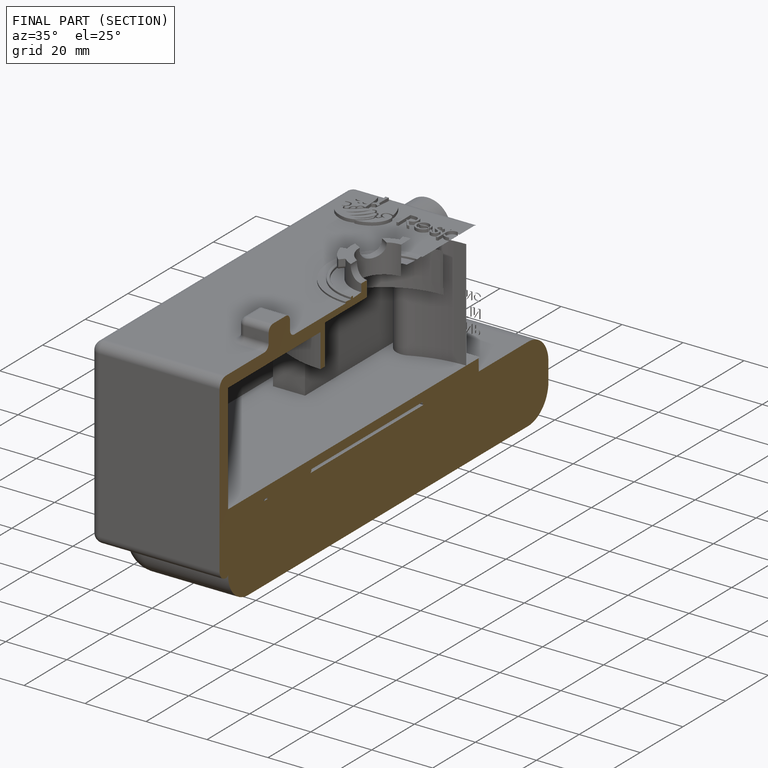
[diagram: finished part — half-section view (interior)]
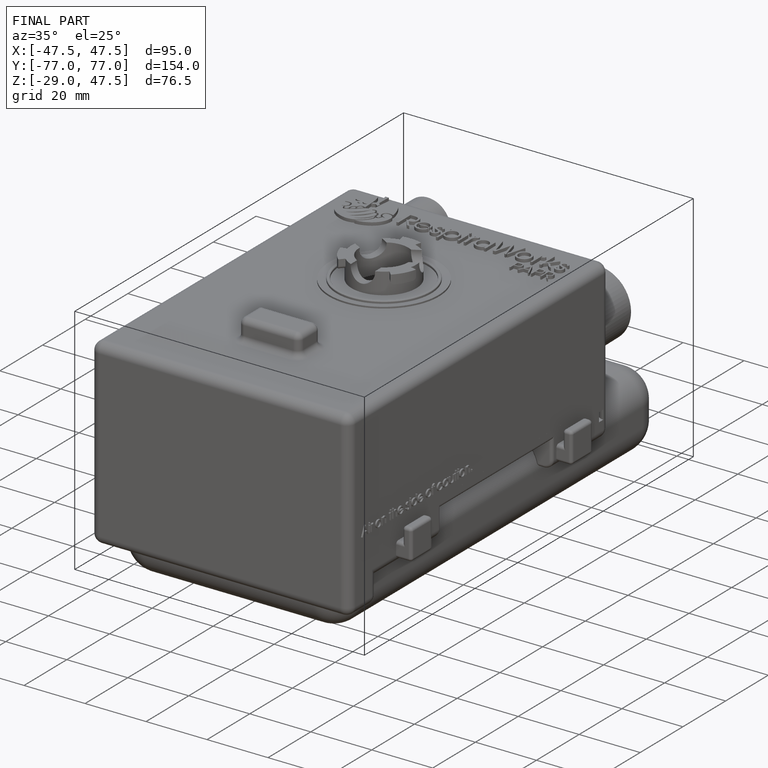
[diagram: finished part — iso view with bounding-box wireframe]
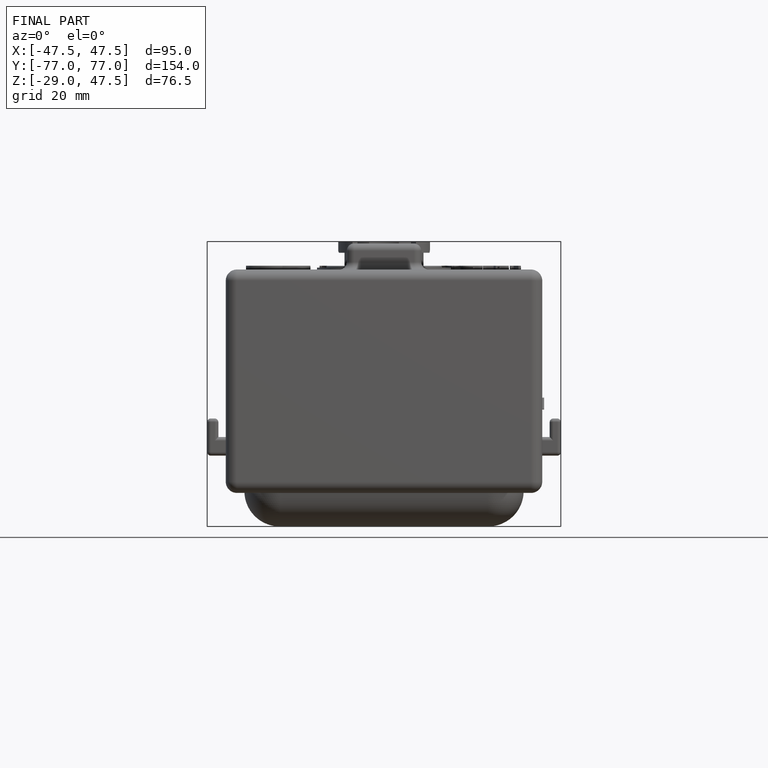
[diagram: finished part — front view with bounding-box wireframe]
